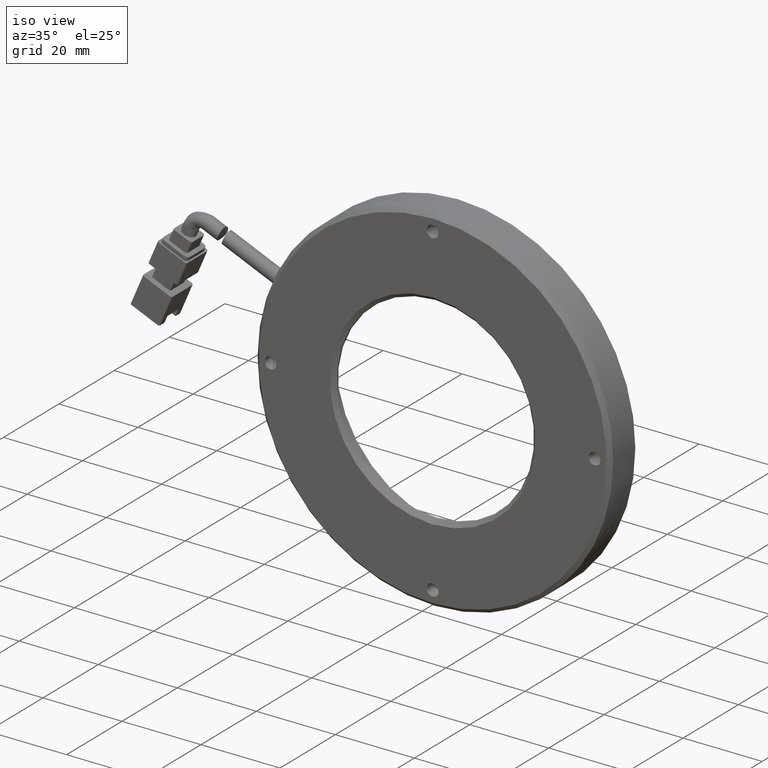
[diagram: clean part render]
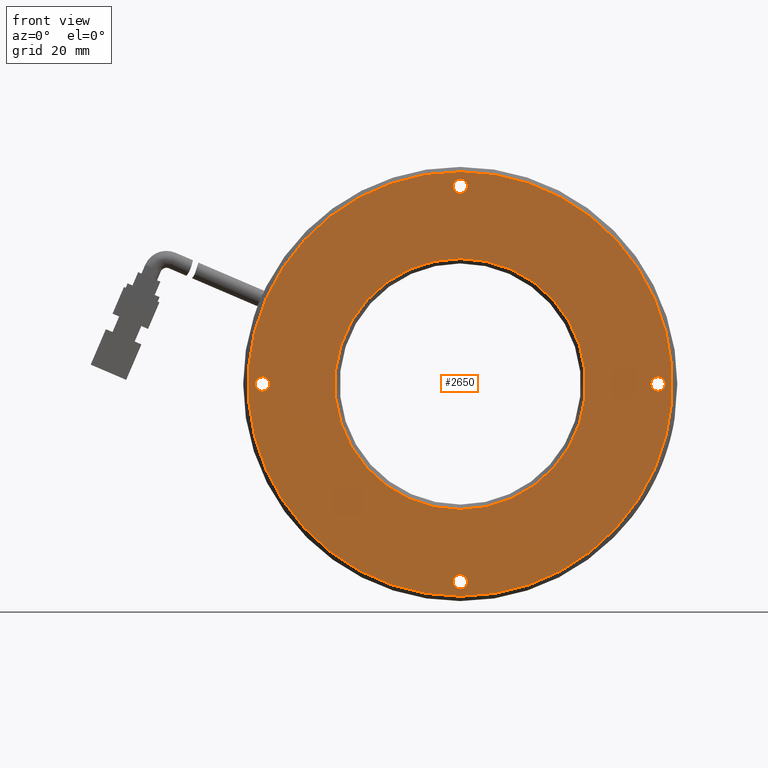
[diagram: tour spotlight — one face highlighted and labeled with its STEP entity id]
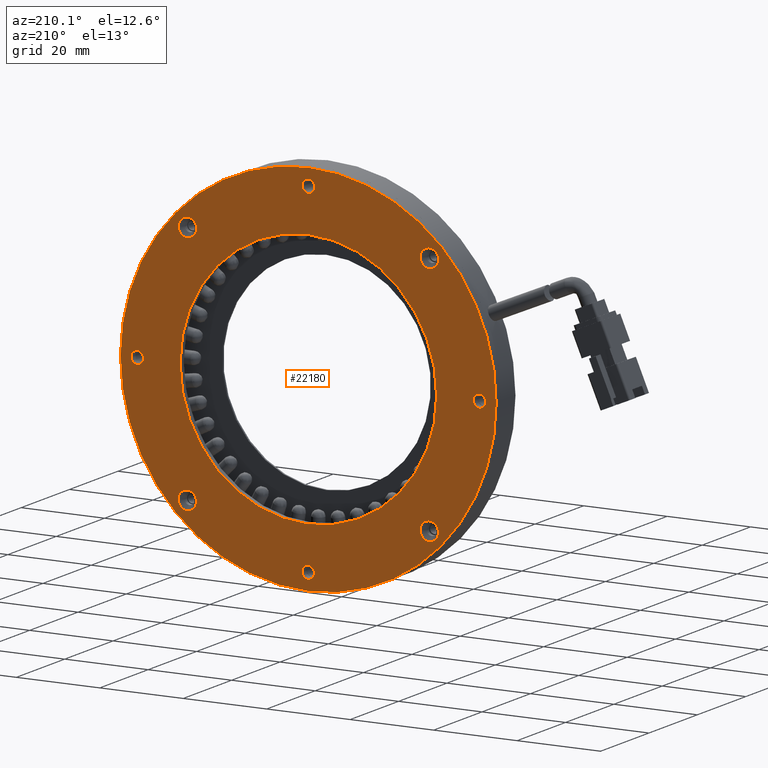
[diagram: tour spotlight — one face highlighted and labeled with its STEP entity id]
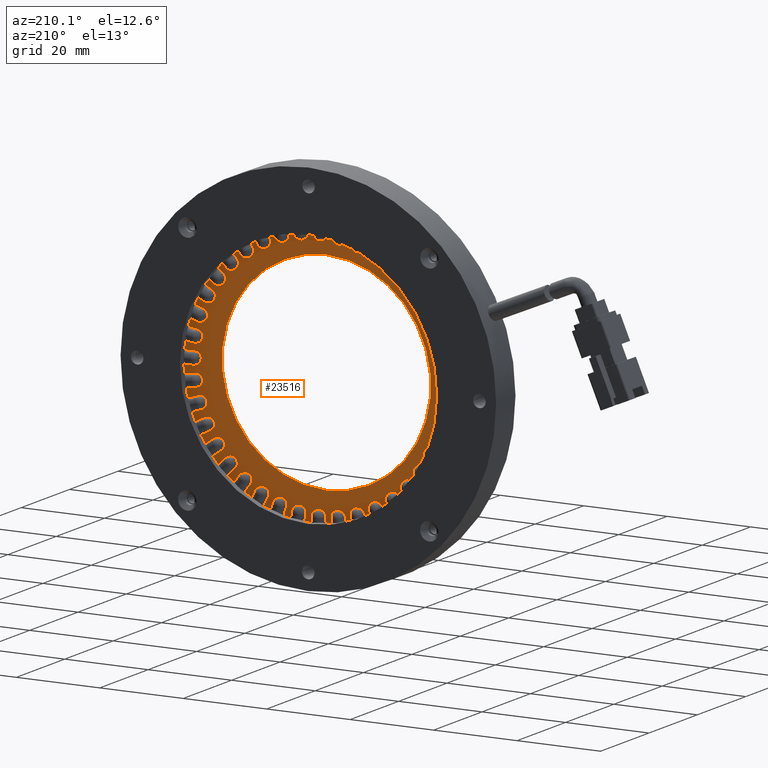
[diagram: tour spotlight — one face highlighted and labeled with its STEP entity id]
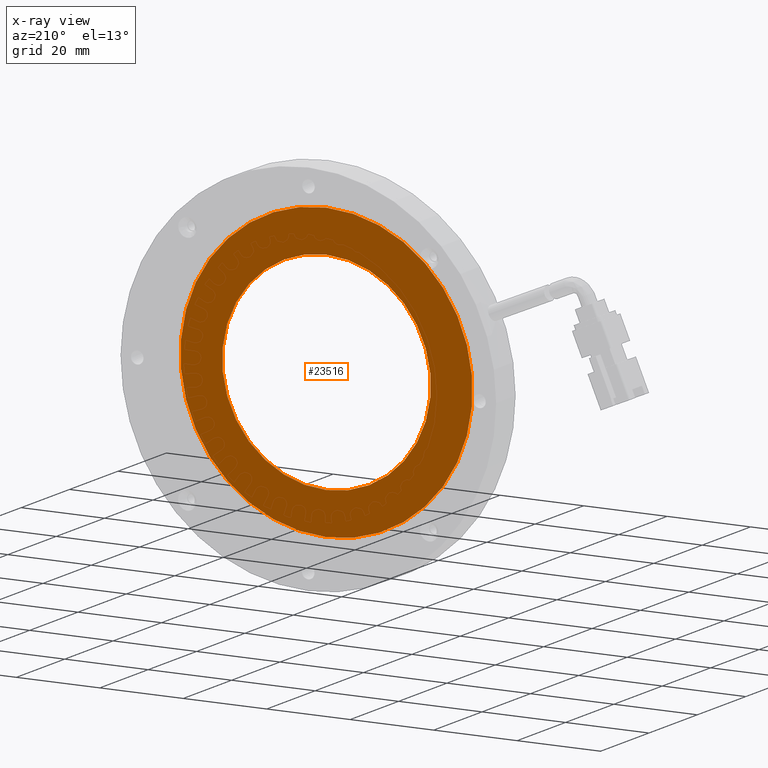
[diagram: x-ray of the same camera — body ghosted, this tour face saturated]
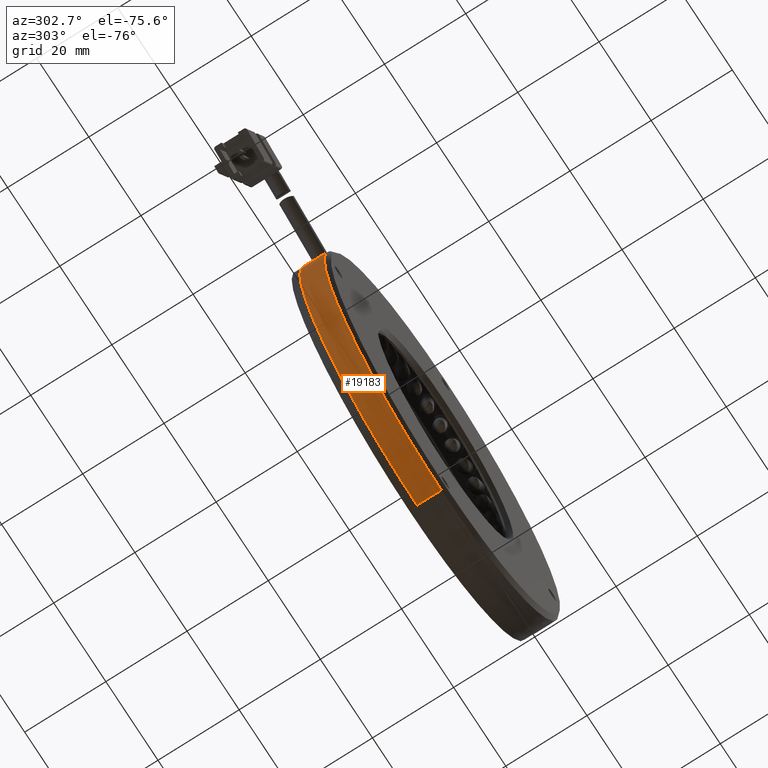
[diagram: tour spotlight — one face highlighted and labeled with its STEP entity id]
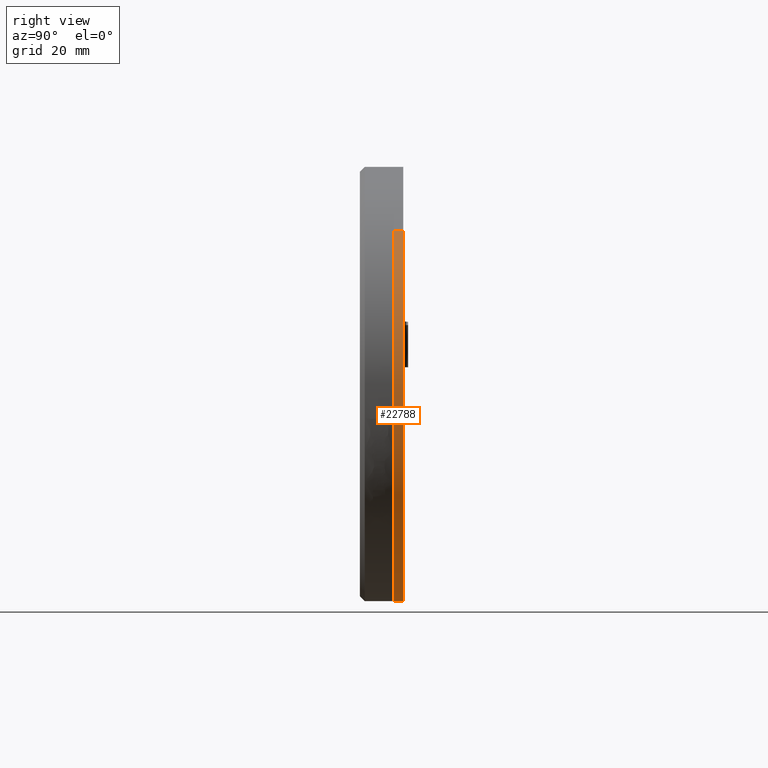
[diagram: tour spotlight — one face highlighted and labeled with its STEP entity id]
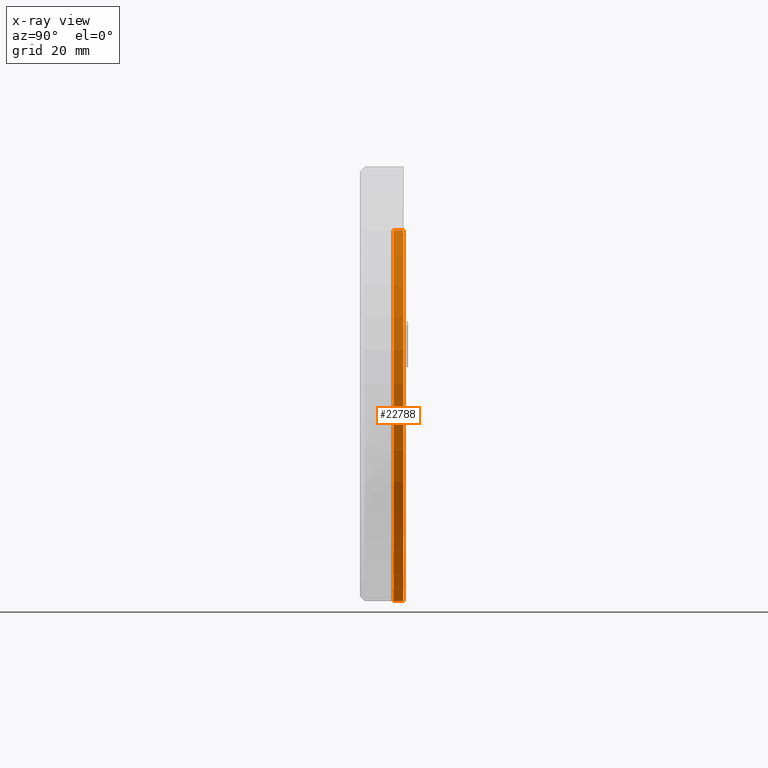
[diagram: x-ray of the same camera — body ghosted, this tour face saturated]
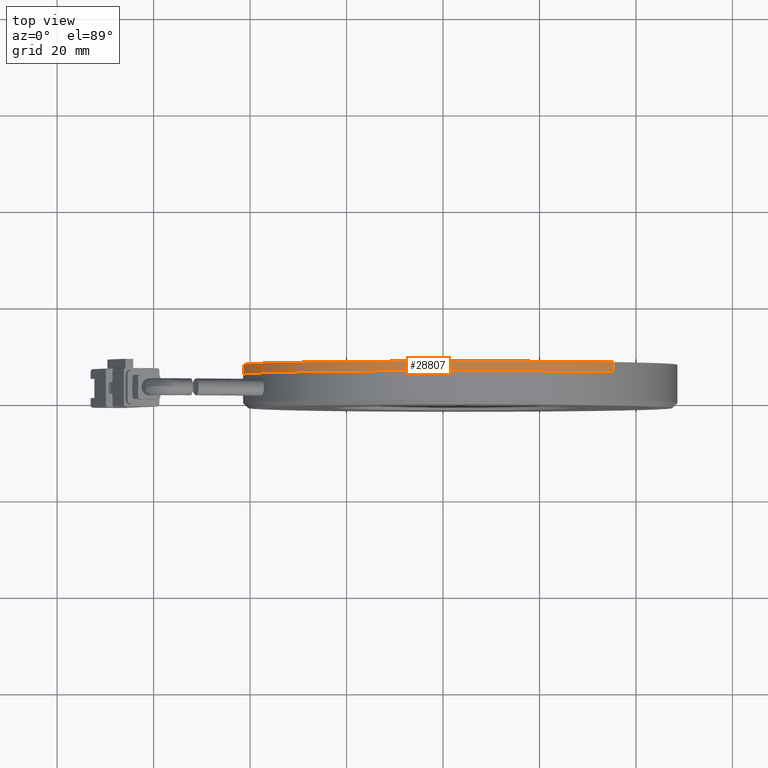
[diagram: tour spotlight — one face highlighted and labeled with its STEP entity id]
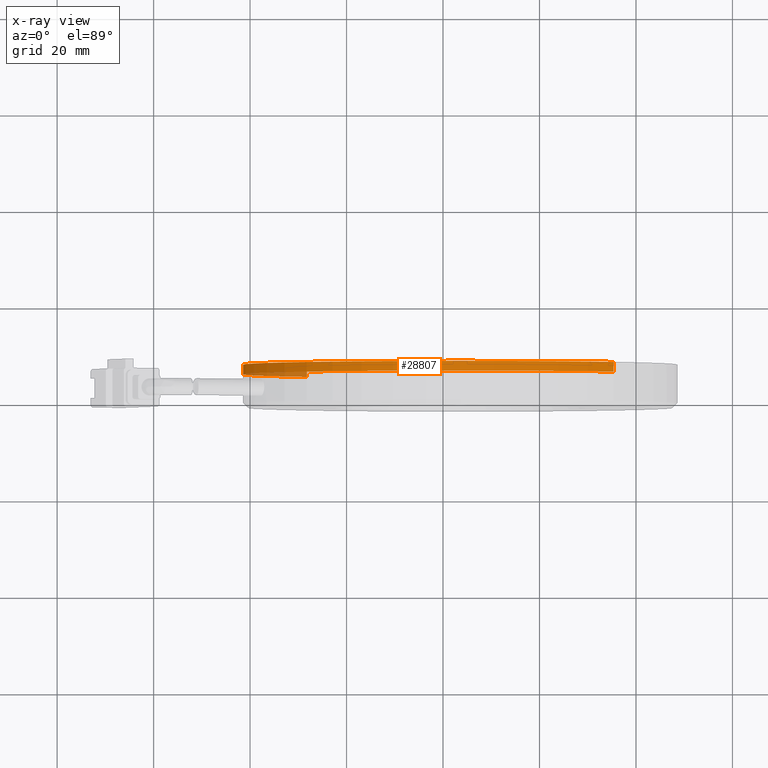
[diagram: x-ray of the same camera — body ghosted, this tour face saturated]
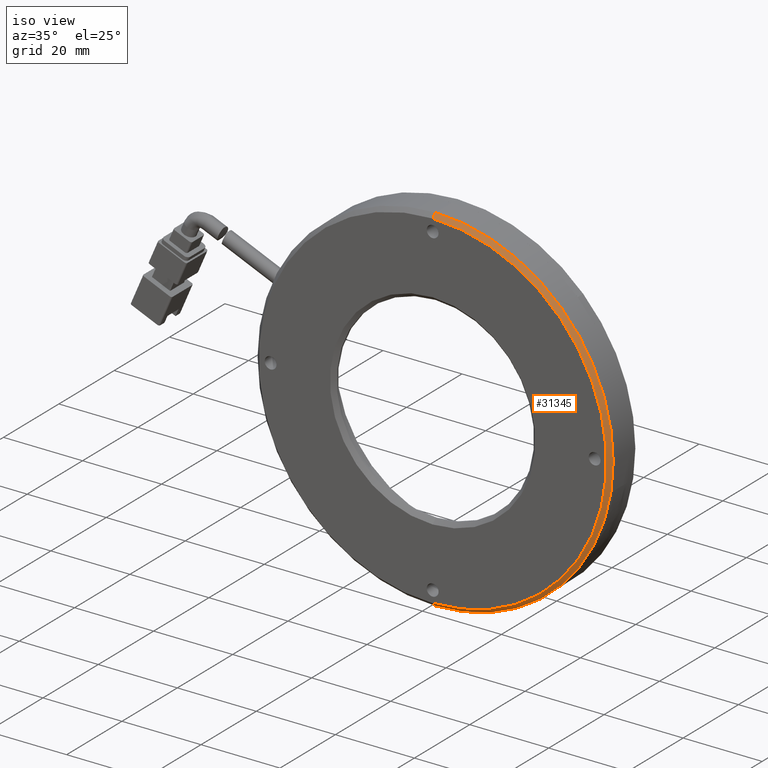
[diagram: tour spotlight — one face highlighted and labeled with its STEP entity id]
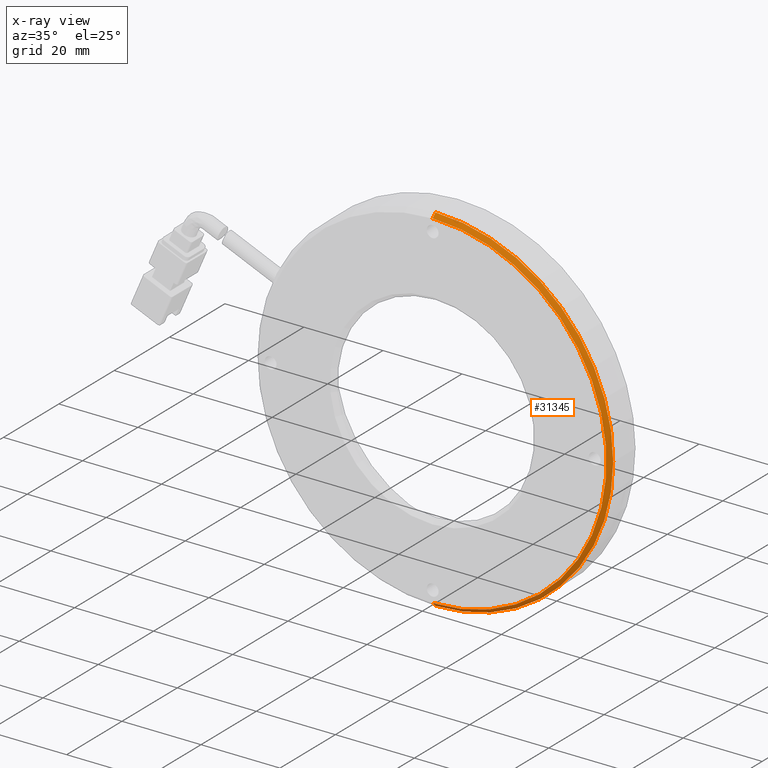
[diagram: x-ray of the same camera — body ghosted, this tour face saturated]
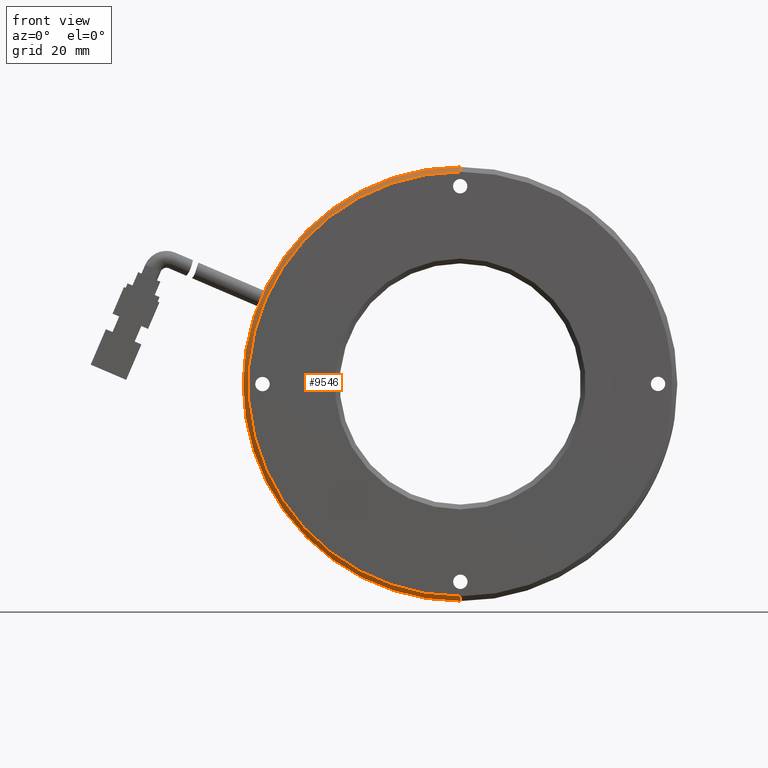
[diagram: tour spotlight — one face highlighted and labeled with its STEP entity id]
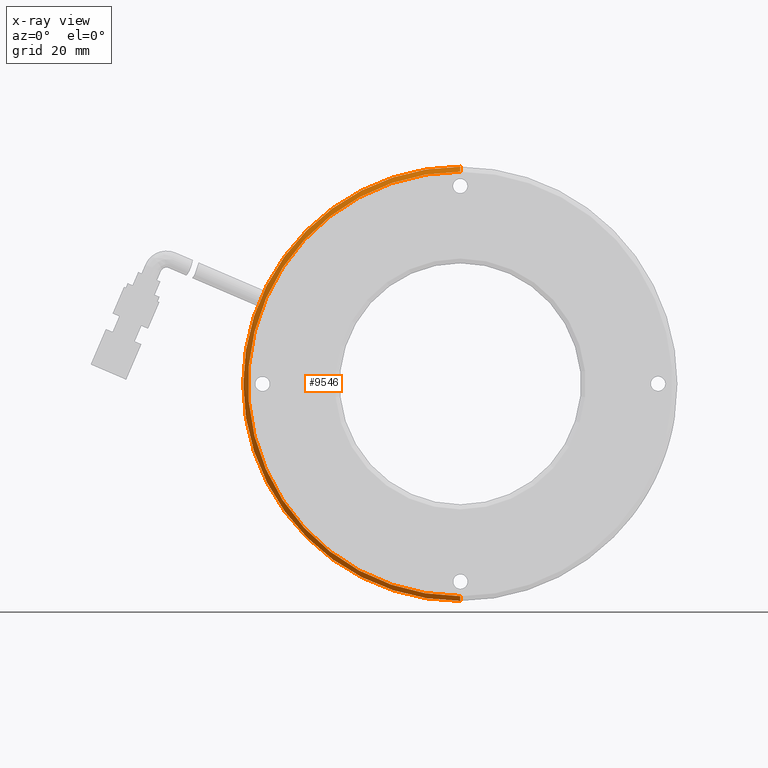
[diagram: x-ray of the same camera — body ghosted, this tour face saturated]
A machine part: a face-by-face anatomy tour. The part has 884 B-rep faces; the first image is the clean iso view, then the 8 largest visible faces are spotlighted one at a time (largest first), each with its STEP entity span.

Face 1 — front view, entity #2650. In plain terms, the highlighted planar face has unit normal (0, 1, 0).
Definition (entity closure, byte-faithful):
#359 = DIRECTION ( 'NONE',  ( 0.0000000000000000000, 0.0000000000000000000, 1.000000000000000000 ) ) ;
#1640 = DIRECTION ( 'NONE',  ( 0.0000000000000000000, -1.000000000000000000, 0.0000000000000000000 ) ) ;
#1647 = AXIS2_PLACEMENT_3D ( 'NONE', #21853, #3362, #25024 ) ;
#1667 = DIRECTION ( 'NONE',  ( 0.0000000000000000000, -0.0000000000000000000, 1.000000000000000000 ) ) ;
#1796 = DIRECTION ( 'NONE',  ( 0.0000000000000000000, 1.000000000000000000, 0.0000000000000000000 ) ) ;
#1813 = DIRECTION ( 'NONE',  ( 0.0000000000000000000, 0.0000000000000000000, 1.000000000000000000 ) ) ;
#1861 = DIRECTION ( 'NONE',  ( 0.0000000000000000000, -1.000000000000000000, 0.0000000000000000000 ) ) ;
#2053 = CARTESIAN_POINT ( 'NONE',  ( -41.42857142857143100, -1.376447876447878900, 0.0000000000000000000 ) ) ;
#2326 = CARTESIAN_POINT ( 'NONE',  ( -37.42857142857143800, -1.376447876447878900, 1.499999999999562400 ) ) ;
#2650 = ADVANCED_FACE ( 'NONE', ( #22138, #13937, #30411, #37631, #31369, #29454 ), #3671, .F. ) ;
#2782 = ORIENTED_EDGE ( 'NONE', *, *, #12845, .F. ) ;
#3362 = DIRECTION ( 'NONE',  ( 0.0000000000000000000, -1.000000000000000000, 0.0000000000000000000 ) ) ;
#3671 = PLANE ( 'NONE',  #39060 ) ;
#3791 = EDGE_CURVE ( 'NONE', #26821, #16218, #8871, .T. ) ;
#4214 = VERTEX_POINT ( 'NONE', #28337 ) ;
#4955 = EDGE_CURVE ( 'NONE', #14297, #20062, #40064, .T. ) ;
#5005 = AXIS2_PLACEMENT_3D ( 'NONE', #20099, #1640, #23262 ) ;
#5322 = AXIS2_PLACEMENT_3D ( 'NONE', #15004, #16272, #14926 ) ;
#6638 = VERTEX_POINT ( 'NONE', #37236 ) ;
#6715 = VERTEX_POINT ( 'NONE', #37501 ) ;
#7412 = DIRECTION ( 'NONE',  ( 0.0000000000000000000, -1.000000000000000000, 0.0000000000000000000 ) ) ;
#7822 = DIRECTION ( 'NONE',  ( 0.0000000000000000000, -1.000000000000000000, 0.0000000000000000000 ) ) ;
#7926 = ORIENTED_EDGE ( 'NONE', *, *, #29201, .F. ) ;
#8115 = CIRCLE ( 'NONE', #34352, 1.499999999999994400 ) ;
#8205 = AXIS2_PLACEMENT_3D ( 'NONE', #11899, #33529, #15035 ) ;
#8736 = EDGE_LOOP ( 'NONE', ( #2782, #30534 ) ) ;
#8853 = CARTESIAN_POINT ( 'NONE',  ( 3.571428571428565800, -1.376447876447878900, -42.49999999999999300 ) ) ;
#8871 = CIRCLE ( 'NONE', #5322, 1.499999999999994400 ) ;
#9190 = EDGE_LOOP ( 'NONE', ( #30074, #36045 ) ) ;
#9257 = AXIS2_PLACEMENT_3D ( 'NONE', #15275, #36865, #18327 ) ;
#9459 = ORIENTED_EDGE ( 'NONE', *, *, #35312, .F. ) ;
#9492 = AXIS2_PLACEMENT_3D ( 'NONE', #25946, #7412, #29062 ) ;
#9855 = ORIENTED_EDGE ( 'NONE', *, *, #34151, .F. ) ;
#9915 = CARTESIAN_POINT ( 'NONE',  ( 44.57142857142857700, -1.376447876447878900, -1.499999999999848600 ) ) ;
#10919 = ORIENTED_EDGE ( 'NONE', *, *, #39393, .F. ) ;
#11038 = DIRECTION ( 'NONE',  ( 0.0000000000000000000, -1.000000000000000000, 0.0000000000000000000 ) ) ;
#11062 = EDGE_CURVE ( 'NONE', #17683, #28860, #13383, .T. ) ;
#11385 = AXIS2_PLACEMENT_3D ( 'NONE', #33425, #14932, #36538 ) ;
#11899 = CARTESIAN_POINT ( 'NONE',  ( 3.571428571428565800, -1.376447876447878900, 0.0000000000000000000 ) ) ;
#12845 = EDGE_CURVE ( 'NONE', #25499, #6638, #13916, .T. ) ;
#12953 = EDGE_CURVE ( 'NONE', #16218, #26821, #8115, .T. ) ;
#12963 = VERTEX_POINT ( 'NONE', #14026 ) ;
#13383 = CIRCLE ( 'NONE', #16122, 1.499999999999994400 ) ;
#13916 = CIRCLE ( 'NONE', #9492, 1.499999999999992700 ) ;
#13937 = FACE_BOUND ( 'NONE', #14040, .T. ) ;
#14026 = CARTESIAN_POINT ( 'NONE',  ( 3.571428571428568500, -1.376447876447878900, 25.99999999999998200 ) ) ;
#14040 = EDGE_LOOP ( 'NONE', ( #20779, #9855 ) ) ;
#14297 = VERTEX_POINT ( 'NONE', #35054 ) ;
#14425 = CIRCLE ( 'NONE', #9257, 1.499999999999994400 ) ;
#14926 = DIRECTION ( 'NONE',  ( 0.0000000000000000000, 0.0000000000000000000, 1.000000000000000000 ) ) ;
#14932 = DIRECTION ( 'NONE',  ( 0.0000000000000000000, -1.000000000000000000, 0.0000000000000000000 ) ) ;
#15004 = CARTESIAN_POINT ( 'NONE',  ( 3.571428571428565800, -1.376447876447878900, -41.00000000000000000 ) ) ;
#15010 = EDGE_CURVE ( 'NONE', #28860, #17683, #31483, .T. ) ;
#15035 = DIRECTION ( 'NONE',  ( 0.0000000000000000000, 0.0000000000000000000, 1.000000000000000000 ) ) ;
#15199 = DIRECTION ( 'NONE',  ( 0.0000000000000000000, -1.000000000000000000, 0.0000000000000000000 ) ) ;
#15275 = CARTESIAN_POINT ( 'NONE',  ( 44.57142857142857700, -1.376447876447878900, 1.457167719820518000E-013 ) ) ;
#15441 = ORIENTED_EDGE ( 'NONE', *, *, #3791, .F. ) ;
#15736 = EDGE_LOOP ( 'NONE', ( #15441, #20354 ) ) ;
#16122 = AXIS2_PLACEMENT_3D ( 'NONE', #33703, #15199, #36800 ) ;
#16218 = VERTEX_POINT ( 'NONE', #8853 ) ;
#16272 = DIRECTION ( 'NONE',  ( 0.0000000000000000000, -1.000000000000000000, 0.0000000000000000000 ) ) ;
#17683 = VERTEX_POINT ( 'NONE', #30599 ) ;
#18327 = DIRECTION ( 'NONE',  ( 0.0000000000000000000, 0.0000000000000000000, 1.000000000000000000 ) ) ;
#18798 = DIRECTION ( 'NONE',  ( -0.0000000000000000000, 1.000000000000000000, 0.0000000000000000000 ) ) ;
#20062 = VERTEX_POINT ( 'NONE', #9915 ) ;
#20099 = CARTESIAN_POINT ( 'NONE',  ( 3.571428571428281200, -1.376447876447878900, 41.00000000000000000 ) ) ;
#20354 = ORIENTED_EDGE ( 'NONE', *, *, #12953, .F. ) ;
#20779 = ORIENTED_EDGE ( 'NONE', *, *, #4955, .F. ) ;
#20948 = CIRCLE ( 'NONE', #11385, 25.99999999999998200 ) ;
#21853 = CARTESIAN_POINT ( 'NONE',  ( 3.571428571428565800, -1.376447876447878900, 0.0000000000000000000 ) ) ;
#22138 = FACE_BOUND ( 'NONE', #15736, .T. ) ;
#23086 = VERTEX_POINT ( 'NONE', #36263 ) ;
#23262 = DIRECTION ( 'NONE',  ( 0.0000000000000000000, 0.0000000000000000000, 1.000000000000000000 ) ) ;
#23512 = EDGE_LOOP ( 'NONE', ( #9459, #10919 ) ) ;
#25024 = DIRECTION ( 'NONE',  ( 0.0000000000000000000, 0.0000000000000000000, -1.000000000000000000 ) ) ;
#25499 = VERTEX_POINT ( 'NONE', #2326 ) ;
#25946 = CARTESIAN_POINT ( 'NONE',  ( -37.42857142857143800, -1.376447876447878900, -4.302114220422481600E-013 ) ) ;
#26332 = CARTESIAN_POINT ( 'NONE',  ( -37.42857142857143800, -1.376447876447878900, -4.302114220422481600E-013 ) ) ;
#26699 = AXIS2_PLACEMENT_3D ( 'NONE', #26332, #7822, #29467 ) ;
#26821 = VERTEX_POINT ( 'NONE', #39539 ) ;
#27254 = CIRCLE ( 'NONE', #8205, 44.00000000000000000 ) ;
#28337 = CARTESIAN_POINT ( 'NONE',  ( 3.571428571428565800, -1.376447876447878900, 44.00000000000000000 ) ) ;
#28860 = VERTEX_POINT ( 'NONE', #34632 ) ;
#29062 = DIRECTION ( 'NONE',  ( 0.0000000000000000000, 0.0000000000000000000, 1.000000000000000000 ) ) ;
#29201 = EDGE_CURVE ( 'NONE', #23086, #4214, #27254, .T. ) ;
#29259 = CIRCLE ( 'NONE', #26699, 1.499999999999992700 ) ;
#29454 = FACE_BOUND ( 'NONE', #23512, .T. ) ;
#29467 = DIRECTION ( 'NONE',  ( 0.0000000000000000000, 0.0000000000000000000, 1.000000000000000000 ) ) ;
#29595 = CARTESIAN_POINT ( 'NONE',  ( 3.571428571428565800, -1.376447876447878900, -41.00000000000000000 ) ) ;
#29899 = CIRCLE ( 'NONE', #1647, 25.99999999999998200 ) ;
#29968 = ORIENTED_EDGE ( 'NONE', *, *, #33231, .F. ) ;
#30074 = ORIENTED_EDGE ( 'NONE', *, *, #11062, .F. ) ;
#30411 = FACE_BOUND ( 'NONE', #9190, .T. ) ;
#30534 = ORIENTED_EDGE ( 'NONE', *, *, #38072, .F. ) ;
#30599 = CARTESIAN_POINT ( 'NONE',  ( 3.571428571428281200, -1.376447876447878900, 42.49999999999999300 ) ) ;
#31034 = CIRCLE ( 'NONE', #35593, 44.00000000000000000 ) ;
#31369 = FACE_OUTER_BOUND ( 'NONE', #33621, .T. ) ;
#31483 = CIRCLE ( 'NONE', #5005, 1.499999999999994400 ) ;
#32666 = DIRECTION ( 'NONE',  ( 0.0000000000000000000, 0.0000000000000000000, 1.000000000000000000 ) ) ;
#33231 = EDGE_CURVE ( 'NONE', #4214, #23086, #31034, .T. ) ;
#33425 = CARTESIAN_POINT ( 'NONE',  ( 3.571428571428565800, -1.376447876447878900, 0.0000000000000000000 ) ) ;
#33529 = DIRECTION ( 'NONE',  ( -0.0000000000000000000, 1.000000000000000000, 0.0000000000000000000 ) ) ;
#33621 = EDGE_LOOP ( 'NONE', ( #29968, #7926 ) ) ;
#33703 = CARTESIAN_POINT ( 'NONE',  ( 3.571428571428281200, -1.376447876447878900, 41.00000000000000000 ) ) ;
#34151 = EDGE_CURVE ( 'NONE', #20062, #14297, #14425, .T. ) ;
#34352 = AXIS2_PLACEMENT_3D ( 'NONE', #29595, #11038, #32666 ) ;
#34356 = AXIS2_PLACEMENT_3D ( 'NONE', #36218, #1861, #1813 ) ;
#34632 = CARTESIAN_POINT ( 'NONE',  ( 3.571428571428281200, -1.376447876447878900, 39.50000000000000700 ) ) ;
#35054 = CARTESIAN_POINT ( 'NONE',  ( 44.57142857142857700, -1.376447876447878900, 1.500000000000140100 ) ) ;
#35312 = EDGE_CURVE ( 'NONE', #6715, #12963, #20948, .T. ) ;
#35593 = AXIS2_PLACEMENT_3D ( 'NONE', #37353, #18798, #359 ) ;
#36045 = ORIENTED_EDGE ( 'NONE', *, *, #15010, .F. ) ;
#36218 = CARTESIAN_POINT ( 'NONE',  ( 44.57142857142857700, -1.376447876447878900, 1.457167719820518000E-013 ) ) ;
#36263 = CARTESIAN_POINT ( 'NONE',  ( 3.571428571428570700, -1.376447876447878900, -44.00000000000000000 ) ) ;
#36538 = DIRECTION ( 'NONE',  ( 0.0000000000000000000, 0.0000000000000000000, -1.000000000000000000 ) ) ;
#36800 = DIRECTION ( 'NONE',  ( 0.0000000000000000000, 0.0000000000000000000, 1.000000000000000000 ) ) ;
#36865 = DIRECTION ( 'NONE',  ( 0.0000000000000000000, -1.000000000000000000, 0.0000000000000000000 ) ) ;
#37236 = CARTESIAN_POINT ( 'NONE',  ( -37.42857142857143800, -1.376447876447878900, -1.500000000000422800 ) ) ;
#37353 = CARTESIAN_POINT ( 'NONE',  ( 3.571428571428565800, -1.376447876447878900, 0.0000000000000000000 ) ) ;
#37501 = CARTESIAN_POINT ( 'NONE',  ( 3.571428571428565800, -1.376447876447878900, -25.99999999999998200 ) ) ;
#37631 = FACE_BOUND ( 'NONE', #8736, .T. ) ;
#38072 = EDGE_CURVE ( 'NONE', #6638, #25499, #29259, .T. ) ;
#39060 = AXIS2_PLACEMENT_3D ( 'NONE', #2053, #1796, #1667 ) ;
#39393 = EDGE_CURVE ( 'NONE', #12963, #6715, #29899, .T. ) ;
#39539 = CARTESIAN_POINT ( 'NONE',  ( 3.571428571428565800, -1.376447876447878900, -39.50000000000000700 ) ) ;
#40064 = CIRCLE ( 'NONE', #34356, 1.499999999999994400 ) ;

Face 2 — auxiliary view, entity #22180. In plain terms, the highlighted planar face has unit normal (0, -1, 0).
Definition (entity closure, byte-faithful):
#15 = EDGE_CURVE ( 'NONE', #1220, #427, #28646, .T. ) ;
#183 = CARTESIAN_POINT ( 'NONE',  ( 3.605229402510262900, 7.623552123552121500, -40.99998606711737600 ) ) ;
#184 = EDGE_LOOP ( 'NONE', ( #28330, #18010 ) ) ;
#214 = CIRCLE ( 'NONE', #31117, 2.199999999962528800 ) ;
#427 = VERTEX_POINT ( 'NONE', #36479 ) ;
#1220 = VERTEX_POINT ( 'NONE', #15356 ) ;
#1248 = VERTEX_POINT ( 'NONE', #16128 ) ;
#1663 = CARTESIAN_POINT ( 'NONE',  ( 34.14104945310195700, 7.623552123552124200, -27.41055050798560400 ) ) ;
#1868 = DIRECTION ( 'NONE',  ( 0.7065235946279214700, 0.0000000000000000000, 0.7076894871580616800 ) ) ;
#2034 = AXIS2_PLACEMENT_3D ( 'NONE', #8601, #30238, #11695 ) ;
#2581 = ORIENTED_EDGE ( 'NONE', *, *, #15, .F. ) ;
#3090 = EDGE_CURVE ( 'NONE', #13854, #35871, #21556, .T. ) ;
#3273 = EDGE_CURVE ( 'NONE', #14753, #23249, #23500, .T. ) ;
#3277 = DIRECTION ( 'NONE',  ( -0.7065235946279192500, 0.0000000000000000000, -0.7076894871580640100 ) ) ;
#3348 = CARTESIAN_POINT ( 'NONE',  ( 30.98454404302290400, 7.623552123552126000, 27.45835210176381500 ) ) ;
#3617 = EDGE_CURVE ( 'NONE', #36575, #12999, #23416, .T. ) ;
#3681 = EDGE_CURVE ( 'NONE', #34353, #3767, #7437, .T. ) ;
#3767 = VERTEX_POINT ( 'NONE', #18667 ) ;
#3974 = DIRECTION ( 'NONE',  ( -1.163897087407499700E-016, 1.000000000000000000, -2.939373556709199600E-017 ) ) ;
#4054 = EDGE_CURVE ( 'NONE', #30353, #32035, #22340, .T. ) ;
#4172 = EDGE_CURVE ( 'NONE', #29619, #21575, #21821, .T. ) ;
#4182 = FACE_BOUND ( 'NONE', #25026, .T. ) ;
#4211 = CIRCLE ( 'NONE', #10141, 1.499999999999994400 ) ;
#4244 = CARTESIAN_POINT ( 'NONE',  ( -25.44384040205195800, 7.623552123608962300, 28.96746737974478900 ) ) ;
#4643 = CIRCLE ( 'NONE', #2034, 30.74000000000000200 ) ;
#4867 = CARTESIAN_POINT ( 'NONE',  ( -25.44384040205195800, 7.623552123608962300, 28.96746737974478900 ) ) ;
#5064 = CARTESIAN_POINT ( 'NONE',  ( -37.42855749568880700, 7.623552123552118000, -0.03380083108155823600 ) ) ;
#5155 = FACE_BOUND ( 'NONE', #34957, .T. ) ;
#5187 = EDGE_LOOP ( 'NONE', ( #37230, #39962 ) ) ;
#5348 = VERTEX_POINT ( 'NONE', #21888 ) ;
#5539 = VERTEX_POINT ( 'NONE', #9891 ) ;
#5643 = DIRECTION ( 'NONE',  ( -1.163897087407499700E-016, 1.000000000000000000, -2.939373556709199600E-017 ) ) ;
#6290 = DIRECTION ( 'NONE',  ( -1.163897087407499700E-016, 1.000000000000000000, -2.939373556709199600E-017 ) ) ;
#6404 = CIRCLE ( 'NONE', #24686, 2.199999999959346900 ) ;
#6546 = CARTESIAN_POINT ( 'NONE',  ( 3.571428571428565800, 7.623552123552121500, 0.0000000000000000000 ) ) ;
#7169 = EDGE_CURVE ( 'NONE', #30765, #5539, #23677, .T. ) ;
#7326 = EDGE_CURVE ( 'NONE', #12999, #36575, #6404, .T. ) ;
#7437 = CIRCLE ( 'NONE', #18454, 2.199999999956160100 ) ;
#7973 = DIRECTION ( 'NONE',  ( 0.7065235946279214700, 0.0000000000000000000, 0.7076894871580619000 ) ) ;
#7990 = CARTESIAN_POINT ( 'NONE',  ( -28.27459835068420100, 7.623552123552118900, 31.79356175825647700 ) ) ;
#8163 = DIRECTION ( 'NONE',  ( -0.7065235946279214700, 0.0000000000000000000, -0.7076894871580617900 ) ) ;
#8380 = AXIS2_PLACEMENT_3D ( 'NONE', #14011, #11283, #10446 ) ;
#8601 = CARTESIAN_POINT ( 'NONE',  ( 3.571428571428565800, 7.623552123552121500, 0.0000000000000000000 ) ) ;
#9547 = AXIS2_PLACEMENT_3D ( 'NONE', #17061, #38686, #20125 ) ;
#9629 = DIRECTION ( 'NONE',  ( 0.7065235946279216900, 1.128642469731169200E-016, 0.7076894871580616800 ) ) ;
#9891 = CARTESIAN_POINT ( 'NONE',  ( 4.597413132288457900, 7.623552123552124200, 42.06152029785445700 ) ) ;
#10027 = EDGE_LOOP ( 'NONE', ( #29588, #32840 ) ) ;
#10067 = CIRCLE ( 'NONE', #9547, 45.00000000000000000 ) ;
#10141 = AXIS2_PLACEMENT_3D ( 'NONE', #24790, #6290, #27897 ) ;
#10446 = DIRECTION ( 'NONE',  ( -0.7065235946279214700, 0.0000000000000000000, -0.7076894871580617900 ) ) ;
#10491 = CIRCLE ( 'NONE', #23009, 2.200000000016186800 ) ;
#11283 = DIRECTION ( 'NONE',  ( -1.163897087407499700E-016, 1.000000000000000000, -2.939373556709199600E-017 ) ) ;
#11395 = CARTESIAN_POINT ( 'NONE',  ( 4.665014794452143400, 7.623552123552121500, -39.93845183638028800 ) ) ;
#11695 = DIRECTION ( 'NONE',  ( 0.7065235946279216900, 1.128642469731169200E-016, 0.7076894871580616800 ) ) ;
#11965 = DIRECTION ( 'NONE',  ( -1.163897087407499700E-016, 1.000000000000000000, -2.939373556709199600E-017 ) ) ;
#12040 = AXIS2_PLACEMENT_3D ( 'NONE', #7990, #32701, #14202 ) ;
#12053 = CARTESIAN_POINT ( 'NONE',  ( -18.14710672743374400, 7.623552123552118000, -21.75437483523882100 ) ) ;
#12387 = FACE_BOUND ( 'NONE', #23536, .T. ) ;
#12786 = CARTESIAN_POINT ( 'NONE',  ( -23.84168690016127100, 7.623552123495273700, -27.45835210175930300 ) ) ;
#12970 = CARTESIAN_POINT ( 'NONE',  ( 2.477842348404698300, 7.623552123552124200, 39.93845183638028100 ) ) ;
#12999 = VERTEX_POINT ( 'NONE', #32804 ) ;
#13001 = AXIS2_PLACEMENT_3D ( 'NONE', #15450, #37056, #18490 ) ;
#13739 = AXIS2_PLACEMENT_3D ( 'NONE', #25593, #25187, #25273 ) ;
#13854 = VERTEX_POINT ( 'NONE', #38461 ) ;
#14011 = CARTESIAN_POINT ( 'NONE',  ( -37.42855749568880700, 7.623552123552118000, -0.03380083108155823600 ) ) ;
#14075 = EDGE_CURVE ( 'NONE', #5348, #26304, #214, .T. ) ;
#14202 = DIRECTION ( 'NONE',  ( -0.7065235946279216900, -1.030337130463465200E-016, -0.7076894871580615700 ) ) ;
#14753 = VERTEX_POINT ( 'NONE', #31393 ) ;
#14875 = CIRCLE ( 'NONE', #22693, 1.499999999999990500 ) ;
#14888 = DIRECTION ( 'NONE',  ( -1.163897087407499700E-016, 1.000000000000000000, -2.939373556709199600E-017 ) ) ;
#15003 = DIRECTION ( 'NONE',  ( -0.7065235946279235800, 0.0000000000000000000, -0.7076894871580596800 ) ) ;
#15186 = EDGE_CURVE ( 'NONE', #26304, #5348, #25183, .T. ) ;
#15285 = CIRCLE ( 'NONE', #33558, 1.499999999999994900 ) ;
#15356 = CARTESIAN_POINT ( 'NONE',  ( 35.36499032968504300, 7.623552123552126000, 31.84602692211276700 ) ) ;
#15450 = CARTESIAN_POINT ( 'NONE',  ( 3.537627740346577500, 7.623552123552124200, 40.99998606711736900 ) ) ;
#15526 = DIRECTION ( 'NONE',  ( -1.163897087407499700E-016, 1.000000000000000000, -2.939373556709199600E-017 ) ) ;
#15914 = CARTESIAN_POINT ( 'NONE',  ( 44.57141463854593900, 7.623552123552127700, 0.03380083108184966900 ) ) ;
#16027 = CARTESIAN_POINT ( 'NONE',  ( -23.88948849389925000, 7.623552123608962300, 30.52438425146375400 ) ) ;
#16128 = CARTESIAN_POINT ( 'NONE',  ( 25.28996387029088000, 7.623552123552125100, 21.75437483523881700 ) ) ;
#16638 = AXIS2_PLACEMENT_3D ( 'NONE', #33389, #14888, #36508 ) ;
#17061 = CARTESIAN_POINT ( 'NONE',  ( 3.571428571428565800, 7.623552123552121500, 0.0000000000000000000 ) ) ;
#17414 = DIRECTION ( 'NONE',  ( -1.163897087407499700E-016, 1.000000000000000000, -2.939373556709199600E-017 ) ) ;
#17896 = AXIS2_PLACEMENT_3D ( 'NONE', #183, #21770, #3277 ) ;
#18010 = ORIENTED_EDGE ( 'NONE', *, *, #3681, .F. ) ;
#18454 = AXIS2_PLACEMENT_3D ( 'NONE', #30701, #30201, #30374 ) ;
#18490 = DIRECTION ( 'NONE',  ( -0.7065235946279202500, 0.0000000000000000000, -0.7076894871580629000 ) ) ;
#18667 = CARTESIAN_POINT ( 'NONE',  ( 34.09324785932381000, 7.623552123552126000, 30.57218584519723600 ) ) ;
#18780 = DIRECTION ( 'NONE',  ( 0.7065235946279214700, 0.0000000000000000000, 0.7076894871580619000 ) ) ;
#18782 = EDGE_CURVE ( 'NONE', #35871, #13854, #15285, .T. ) ;
#19108 = EDGE_LOOP ( 'NONE', ( #24887, #26887 ) ) ;
#19594 = EDGE_LOOP ( 'NONE', ( #2581, #34033 ) ) ;
#19595 = FACE_BOUND ( 'NONE', #10027, .T. ) ;
#20077 = CARTESIAN_POINT ( 'NONE',  ( 2.545444010568383800, 7.623552123552121500, -42.06152029785446400 ) ) ;
#20125 = DIRECTION ( 'NONE',  ( 0.7065235946279216900, 9.637352644315595200E-017, 0.7076894871580614600 ) ) ;
#20323 = EDGE_CURVE ( 'NONE', #32035, #30353, #10491, .T. ) ;
#20334 = DIRECTION ( 'NONE',  ( -1.163897087407499700E-016, 1.000000000000000000, -2.939373556709199600E-017 ) ) ;
#20578 = FACE_BOUND ( 'NONE', #34442, .T. ) ;
#20832 = CIRCLE ( 'NONE', #17896, 1.499999999999994400 ) ;
#21556 = CIRCLE ( 'NONE', #28584, 1.499999999999995600 ) ;
#21559 = FACE_OUTER_BOUND ( 'NONE', #19594, .T. ) ;
#21575 = VERTEX_POINT ( 'NONE', #11395 ) ;
#21770 = DIRECTION ( 'NONE',  ( -1.163897087407499700E-016, 1.000000000000000000, -2.939373556709199600E-017 ) ) ;
#21821 = CIRCLE ( 'NONE', #30739, 1.499999999999996700 ) ;
#21888 = CARTESIAN_POINT ( 'NONE',  ( -26.95039071647118300, 7.623552123495273700, -30.57218584520174100 ) ) ;
#21961 = ORIENTED_EDGE ( 'NONE', *, *, #38830, .F. ) ;
#22164 = CARTESIAN_POINT ( 'NONE',  ( -36.36877210374692700, 7.623552123552118000, 1.027733399655528000 ) ) ;
#22180 = ADVANCED_FACE ( 'NONE', ( #21559, #37046, #38020, #5155, #20578, #12387, #4182, #36088, #27872, #19595 ), #23397, .F. ) ;
#22330 = ORIENTED_EDGE ( 'NONE', *, *, #4054, .F. ) ;
#22340 = CIRCLE ( 'NONE', #35610, 2.200000000016186800 ) ;
#22693 = AXIS2_PLACEMENT_3D ( 'NONE', #5064, #26685, #8163 ) ;
#22987 = EDGE_CURVE ( 'NONE', #23249, #14753, #14875, .T. ) ;
#23009 = AXIS2_PLACEMENT_3D ( 'NONE', #38905, #20334, #1868 ) ;
#23133 = VERTEX_POINT ( 'NONE', #12053 ) ;
#23249 = VERTEX_POINT ( 'NONE', #22164 ) ;
#23397 = PLANE ( 'NONE',  #12040 ) ;
#23416 = CIRCLE ( 'NONE', #33776, 2.199999999959346900 ) ;
#23500 = CIRCLE ( 'NONE', #8380, 1.499999999999990500 ) ;
#23536 = EDGE_LOOP ( 'NONE', ( #37244, #23755 ) ) ;
#23677 = CIRCLE ( 'NONE', #13001, 1.499999999999996700 ) ;
#23755 = ORIENTED_EDGE ( 'NONE', *, *, #7326, .F. ) ;
#24122 = CIRCLE ( 'NONE', #37183, 2.199999999956160100 ) ;
#24141 = CARTESIAN_POINT ( 'NONE',  ( -25.39603880831622700, 7.623552123495273700, -29.01526897348052400 ) ) ;
#24243 = CIRCLE ( 'NONE', #34479, 30.74000000000000200 ) ;
#24431 = EDGE_LOOP ( 'NONE', ( #39871, #21961 ) ) ;
#24686 = AXIS2_PLACEMENT_3D ( 'NONE', #4867, #26483, #7973 ) ;
#24790 = CARTESIAN_POINT ( 'NONE',  ( 3.537627740346577500, 7.623552123552124200, 40.99998606711736900 ) ) ;
#24887 = ORIENTED_EDGE ( 'NONE', *, *, #4172, .F. ) ;
#25026 = EDGE_LOOP ( 'NONE', ( #29319, #32189 ) ) ;
#25183 = CIRCLE ( 'NONE', #16638, 2.199999999962528800 ) ;
#25187 = DIRECTION ( 'NONE',  ( 1.163897087407499700E-016, -1.000000000000000000, 2.939373556709199600E-017 ) ) ;
#25273 = DIRECTION ( 'NONE',  ( 0.7065235946279216900, 9.637352644315595200E-017, 0.7076894871580614600 ) ) ;
#25298 = ORIENTED_EDGE ( 'NONE', *, *, #20323, .F. ) ;
#25593 = CARTESIAN_POINT ( 'NONE',  ( 3.571428571428565800, 7.623552123552121500, 0.0000000000000000000 ) ) ;
#26304 = VERTEX_POINT ( 'NONE', #12786 ) ;
#26483 = DIRECTION ( 'NONE',  ( -1.163897087407499700E-016, 1.000000000000000000, -2.939373556709199600E-017 ) ) ;
#26644 = CARTESIAN_POINT ( 'NONE',  ( 43.51162924660406600, 7.623552123552127700, -1.027733399655238700 ) ) ;
#26685 = DIRECTION ( 'NONE',  ( -1.163897087407499700E-016, 1.000000000000000000, -2.939373556709199600E-017 ) ) ;
#26887 = ORIENTED_EDGE ( 'NONE', *, *, #38810, .F. ) ;
#27249 = DIRECTION ( 'NONE',  ( 0.7065235946279214700, 0.0000000000000000000, 0.7076894871580617900 ) ) ;
#27613 = DIRECTION ( 'NONE',  ( -0.7065235946279202500, 0.0000000000000000000, -0.7076894871580629000 ) ) ;
#27693 = DIRECTION ( 'NONE',  ( -1.163897087407499700E-016, 1.000000000000000000, -2.939373556709199600E-017 ) ) ;
#27822 = CARTESIAN_POINT ( 'NONE',  ( 3.605229402510262900, 7.623552123552121500, -40.99998606711737600 ) ) ;
#27872 = FACE_BOUND ( 'NONE', #19108, .T. ) ;
#27897 = DIRECTION ( 'NONE',  ( -0.7065235946279192500, 0.0000000000000000000, -0.7076894871580640100 ) ) ;
#28147 = ORIENTED_EDGE ( 'NONE', *, *, #15186, .F. ) ;
#28165 = DIRECTION ( 'NONE',  ( -1.163897087407499700E-016, 1.000000000000000000, -2.939373556709199600E-017 ) ) ;
#28330 = ORIENTED_EDGE ( 'NONE', *, *, #34010, .F. ) ;
#28584 = AXIS2_PLACEMENT_3D ( 'NONE', #15914, #15526, #15003 ) ;
#28646 = CIRCLE ( 'NONE', #13739, 45.00000000000000000 ) ;
#29319 = ORIENTED_EDGE ( 'NONE', *, *, #7169, .F. ) ;
#29588 = ORIENTED_EDGE ( 'NONE', *, *, #3273, .F. ) ;
#29619 = VERTEX_POINT ( 'NONE', #20077 ) ;
#30189 = CARTESIAN_POINT ( 'NONE',  ( 31.03234563671623300, 7.623552123552124200, -30.52438425150398500 ) ) ;
#30201 = DIRECTION ( 'NONE',  ( -1.163897087407499700E-016, 1.000000000000000000, -2.939373556709199600E-017 ) ) ;
#30238 = DIRECTION ( 'NONE',  ( -1.163897087407499700E-016, 1.000000000000000000, -2.939373556709199600E-017 ) ) ;
#30328 = EDGE_CURVE ( 'NONE', #427, #1220, #10067, .T. ) ;
#30353 = VERTEX_POINT ( 'NONE', #1663 ) ;
#30374 = DIRECTION ( 'NONE',  ( 0.7065235946279213600, 0.0000000000000000000, 0.7076894871580619000 ) ) ;
#30518 = CARTESIAN_POINT ( 'NONE',  ( 44.57141463854593900, 7.623552123552127700, 0.03380083108184966900 ) ) ;
#30701 = CARTESIAN_POINT ( 'NONE',  ( 32.53889595117335900, 7.623552123552126000, 29.01526897348052700 ) ) ;
#30739 = AXIS2_PLACEMENT_3D ( 'NONE', #27822, #27693, #27613 ) ;
#30765 = VERTEX_POINT ( 'NONE', #12970 ) ;
#31117 = AXIS2_PLACEMENT_3D ( 'NONE', #24141, #5643, #27249 ) ;
#31393 = CARTESIAN_POINT ( 'NONE',  ( -38.48834288763067900, 7.623552123552118000, -1.095335061818644200 ) ) ;
#31814 = EDGE_CURVE ( 'NONE', #5539, #30765, #4211, .T. ) ;
#32035 = VERTEX_POINT ( 'NONE', #30189 ) ;
#32189 = ORIENTED_EDGE ( 'NONE', *, *, #31814, .F. ) ;
#32466 = ORIENTED_EDGE ( 'NONE', *, *, #14075, .F. ) ;
#32613 = DIRECTION ( 'NONE',  ( 0.7065235946279214700, 0.0000000000000000000, 0.7076894871580616800 ) ) ;
#32647 = DIRECTION ( 'NONE',  ( -1.163897087407499700E-016, 1.000000000000000000, -2.939373556709199600E-017 ) ) ;
#32695 = CARTESIAN_POINT ( 'NONE',  ( 32.58669754490909300, 7.623552123552124200, -28.96746737974479700 ) ) ;
#32701 = DIRECTION ( 'NONE',  ( 1.163897087407499700E-016, -1.000000000000000000, 2.939373556709199600E-017 ) ) ;
#32804 = CARTESIAN_POINT ( 'NONE',  ( -26.99819231020466100, 7.623552123608962300, 27.41055050802582100 ) ) ;
#32840 = ORIENTED_EDGE ( 'NONE', *, *, #22987, .F. ) ;
#33389 = CARTESIAN_POINT ( 'NONE',  ( -25.39603880831622700, 7.623552123495273700, -29.01526897348052400 ) ) ;
#33558 = AXIS2_PLACEMENT_3D ( 'NONE', #30518, #11965, #33603 ) ;
#33603 = DIRECTION ( 'NONE',  ( -0.7065235946279239100, 0.0000000000000000000, -0.7076894871580593500 ) ) ;
#33776 = AXIS2_PLACEMENT_3D ( 'NONE', #4244, #3974, #18780 ) ;
#34010 = EDGE_CURVE ( 'NONE', #3767, #34353, #24122, .T. ) ;
#34033 = ORIENTED_EDGE ( 'NONE', *, *, #30328, .F. ) ;
#34353 = VERTEX_POINT ( 'NONE', #3348 ) ;
#34442 = EDGE_LOOP ( 'NONE', ( #28147, #32466 ) ) ;
#34479 = AXIS2_PLACEMENT_3D ( 'NONE', #6546, #28165, #9629 ) ;
#34678 = EDGE_CURVE ( 'NONE', #1248, #23133, #4643, .T. ) ;
#34957 = EDGE_LOOP ( 'NONE', ( #22330, #25298 ) ) ;
#35610 = AXIS2_PLACEMENT_3D ( 'NONE', #32695, #32647, #32613 ) ;
#35871 = VERTEX_POINT ( 'NONE', #26644 ) ;
#35937 = CARTESIAN_POINT ( 'NONE',  ( 32.53889595117335900, 7.623552123552126000, 29.01526897348052700 ) ) ;
#36088 = FACE_BOUND ( 'NONE', #5187, .T. ) ;
#36479 = CARTESIAN_POINT ( 'NONE',  ( -28.22213318682790400, 7.623552123552117100, -31.84602692211277400 ) ) ;
#36508 = DIRECTION ( 'NONE',  ( 0.7065235946279214700, 0.0000000000000000000, 0.7076894871580617900 ) ) ;
#36575 = VERTEX_POINT ( 'NONE', #16027 ) ;
#37046 = FACE_BOUND ( 'NONE', #24431, .T. ) ;
#37056 = DIRECTION ( 'NONE',  ( -1.163897087407499700E-016, 1.000000000000000000, -2.939373556709199600E-017 ) ) ;
#37183 = AXIS2_PLACEMENT_3D ( 'NONE', #35937, #17414, #39070 ) ;
#37230 = ORIENTED_EDGE ( 'NONE', *, *, #18782, .F. ) ;
#37244 = ORIENTED_EDGE ( 'NONE', *, *, #3617, .F. ) ;
#38020 = FACE_BOUND ( 'NONE', #184, .T. ) ;
#38461 = CARTESIAN_POINT ( 'NONE',  ( 45.63120003048781800, 7.623552123552127700, 1.095335061818939500 ) ) ;
#38686 = DIRECTION ( 'NONE',  ( 1.163897087407499700E-016, -1.000000000000000000, 2.939373556709199600E-017 ) ) ;
#38810 = EDGE_CURVE ( 'NONE', #21575, #29619, #20832, .T. ) ;
#38830 = EDGE_CURVE ( 'NONE', #23133, #1248, #24243, .T. ) ;
#38905 = CARTESIAN_POINT ( 'NONE',  ( 32.58669754490909300, 7.623552123552124200, -28.96746737974479700 ) ) ;
#39070 = DIRECTION ( 'NONE',  ( 0.7065235946279213600, 0.0000000000000000000, 0.7076894871580619000 ) ) ;
#39871 = ORIENTED_EDGE ( 'NONE', *, *, #34678, .F. ) ;
#39962 = ORIENTED_EDGE ( 'NONE', *, *, #3090, .F. ) ;

Face 3 — auxiliary view, entity #23516. An x-ray twin of the same camera follows (body ghosted, this face saturated) — the face is partly hidden behind the body. In plain terms, the highlighted planar face has unit normal (0, -1, 0).
Definition (entity closure, byte-faithful):
#794 = EDGE_CURVE ( 'NONE', #19716, #10071, #35730, .T. ) ;
#1537 = AXIS2_PLACEMENT_3D ( 'NONE', #2644, #24295, #5805 ) ;
#1734 = EDGE_LOOP ( 'NONE', ( #23335, #26762 ) ) ;
#1879 = CARTESIAN_POINT ( 'NONE',  ( 3.571428571428565800, 0.1235521235521210800, -35.00000000000000000 ) ) ;
#1990 = DIRECTION ( 'NONE',  ( -0.0000000000000000000, -1.000000000000000000, -0.0000000000000000000 ) ) ;
#2644 = CARTESIAN_POINT ( 'NONE',  ( 3.571428571428565800, 0.1235521235521210800, 0.0000000000000000000 ) ) ;
#4689 = CIRCLE ( 'NONE', #1537, 35.00000000000000000 ) ;
#5805 = DIRECTION ( 'NONE',  ( 0.0000000000000000000, 0.0000000000000000000, -1.000000000000000000 ) ) ;
#7856 = CARTESIAN_POINT ( 'NONE',  ( -31.42857142857143800, 0.1235521235521210800, 0.0000000000000000000 ) ) ;
#8005 = FACE_OUTER_BOUND ( 'NONE', #1734, .T. ) ;
#8673 = CARTESIAN_POINT ( 'NONE',  ( 3.571428571428565800, 0.1235521235521210800, 0.0000000000000000000 ) ) ;
#9371 = VERTEX_POINT ( 'NONE', #24105 ) ;
#10071 = VERTEX_POINT ( 'NONE', #15808 ) ;
#10340 = VERTEX_POINT ( 'NONE', #1879 ) ;
#10939 = DIRECTION ( 'NONE',  ( 0.0000000000000000000, -0.0000000000000000000, -1.000000000000000000 ) ) ;
#11767 = DIRECTION ( 'NONE',  ( 0.0000000000000000000, 0.0000000000000000000, -1.000000000000000000 ) ) ;
#11963 = CIRCLE ( 'NONE', #23298, 25.00000000000000000 ) ;
#12187 = CARTESIAN_POINT ( 'NONE',  ( 3.571428571428565800, 0.1235521235521210800, 0.0000000000000000000 ) ) ;
#13820 = EDGE_LOOP ( 'NONE', ( #16583, #32103 ) ) ;
#14937 = DIRECTION ( 'NONE',  ( -0.0000000000000000000, -1.000000000000000000, -0.0000000000000000000 ) ) ;
#15586 = EDGE_CURVE ( 'NONE', #10340, #9371, #26271, .T. ) ;
#15808 = CARTESIAN_POINT ( 'NONE',  ( 3.571428571428565800, 0.1235521235521210800, -25.00000000000000000 ) ) ;
#16213 = FACE_BOUND ( 'NONE', #13820, .T. ) ;
#16583 = ORIENTED_EDGE ( 'NONE', *, *, #30545, .T. ) ;
#16900 = PLANE ( 'NONE',  #21671 ) ;
#17617 = CARTESIAN_POINT ( 'NONE',  ( 3.571428571428568500, 0.1235521235521210800, 25.00000000000000000 ) ) ;
#18441 = AXIS2_PLACEMENT_3D ( 'NONE', #20474, #1990, #23643 ) ;
#19716 = VERTEX_POINT ( 'NONE', #17617 ) ;
#20436 = EDGE_CURVE ( 'NONE', #9371, #10340, #4689, .T. ) ;
#20474 = CARTESIAN_POINT ( 'NONE',  ( 3.571428571428565800, 0.1235521235521210800, 0.0000000000000000000 ) ) ;
#21671 = AXIS2_PLACEMENT_3D ( 'NONE', #7856, #29506, #10939 ) ;
#23298 = AXIS2_PLACEMENT_3D ( 'NONE', #8673, #30327, #11767 ) ;
#23335 = ORIENTED_EDGE ( 'NONE', *, *, #15586, .F. ) ;
#23516 = ADVANCED_FACE ( 'NONE', ( #16213, #8005 ), #16900, .F. ) ;
#23643 = DIRECTION ( 'NONE',  ( 0.0000000000000000000, 0.0000000000000000000, -1.000000000000000000 ) ) ;
#24105 = CARTESIAN_POINT ( 'NONE',  ( 3.571428571428569800, 0.1235521235521210800, 35.00000000000000000 ) ) ;
#24295 = DIRECTION ( 'NONE',  ( -0.0000000000000000000, -1.000000000000000000, -0.0000000000000000000 ) ) ;
#26271 = CIRCLE ( 'NONE', #18441, 35.00000000000000000 ) ;
#26762 = ORIENTED_EDGE ( 'NONE', *, *, #20436, .F. ) ;
#29506 = DIRECTION ( 'NONE',  ( 0.0000000000000000000, -1.000000000000000000, 0.0000000000000000000 ) ) ;
#29940 = DIRECTION ( 'NONE',  ( 0.0000000000000000000, 0.0000000000000000000, -1.000000000000000000 ) ) ;
#30327 = DIRECTION ( 'NONE',  ( -0.0000000000000000000, -1.000000000000000000, -0.0000000000000000000 ) ) ;
#30545 = EDGE_CURVE ( 'NONE', #10071, #19716, #11963, .T. ) ;
#32103 = ORIENTED_EDGE ( 'NONE', *, *, #794, .T. ) ;
#35730 = CIRCLE ( 'NONE', #39473, 25.00000000000000000 ) ;
#39473 = AXIS2_PLACEMENT_3D ( 'NONE', #12187, #14937, #29940 ) ;

Face 4 — auxiliary view, entity #19183. In plain terms, the highlighted cylindrical surface (partial cylindrical patch) has radius 45 mm, axis along (-0, -1, -0).
Definition (entity closure, byte-faithful):
#521 = CARTESIAN_POINT ( 'NONE',  ( -37.09115171923920000, 2.170606106133064800, 19.27576350581516000 ) ) ;
#654 = CARTESIAN_POINT ( 'NONE',  ( -38.00651239941162600, 0.9624203313707585500, 17.21296168761355000 ) ) ;
#1660 = FACE_OUTER_BOUND ( 'NONE', #7700, .T. ) ;
#1740 = DIRECTION ( 'NONE',  ( -0.0000000000000000000, -1.000000000000000000, -0.0000000000000000000 ) ) ;
#1924 = AXIS2_PLACEMENT_3D ( 'NONE', #27614, #9099, #30756 ) ;
#2187 = CIRCLE ( 'NONE', #34838, 44.99999999999999300 ) ;
#2359 = B_SPLINE_CURVE_WITH_KNOTS ( 'NONE', 3,
 ( #12787, #9560, #18945, #521, #22111, #3608, #25277, #6753, #28369, #9832, #31471, #12931, #34550, #16046, #37662, #19088, #654, #22243, #3747, #25424, #6878, #28497, #9971, #31601, #13064, #34684, #16168, #37803 ),
 .UNSPECIFIED., .F., .F.,
 ( 4, 2, 2, 2, 2, 2, 2, 2, 2, 2, 2, 2, 2, 4 ),
 ( 0.005470678593161063300, 0.005812596149098764300, 0.006154513705036465300, 0.006496431260974166300, 0.006838348816911866400, 0.007522183928787279700, 0.008206019040662693900, 0.008547936596600407000, 0.008889854152538116700, 0.009231771708475829800, 0.009573689264413541200, 0.009915606820351252600, 0.01025752437628896600, 0.01094135948816439200 ),
 .UNSPECIFIED. ) ;
#2751 = CARTESIAN_POINT ( 'NONE',  ( 3.571428571428565800, -1.376447876447878900, -45.00000000000000000 ) ) ;
#3608 = CARTESIAN_POINT ( 'NONE',  ( -37.14308395501166200, 1.847568183909767300, 19.16586550613311200 ) ) ;
#3747 = CARTESIAN_POINT ( 'NONE',  ( -38.12573715755264900, 1.104735824450448600, 16.92203791646875300 ) ) ;
#3794 = VERTEX_POINT ( 'NONE', #18698 ) ;
#4263 = VERTEX_POINT ( 'NONE', #26028 ) ;
#4916 = EDGE_CURVE ( 'NONE', #29680, #5012, #17885, .T. ) ;
#5012 = VERTEX_POINT ( 'NONE', #36781 ) ;
#5783 = CARTESIAN_POINT ( 'NONE',  ( 3.571428571428565800, -0.3764478764478641500, 0.0000000000000000000 ) ) ;
#5801 = VECTOR ( 'NONE', #30640, 1000.000000000000000 ) ;
#6070 = CARTESIAN_POINT ( 'NONE',  ( -37.22028864636301600, 3.691762900737269400, 19.00104815411902900 ) ) ;
#6753 = CARTESIAN_POINT ( 'NONE',  ( -37.21978580156132900, 1.556854115894109800, 19.00212789586633400 ) ) ;
#6878 = CARTESIAN_POINT ( 'NONE',  ( -38.22950737952654500, 1.303614445601694700, 16.66398623317044400 ) ) ;
#7700 = EDGE_LOOP ( 'NONE', ( #17154, #26122, #11735, #34862 ) ) ;
#8839 = EDGE_CURVE ( 'NONE', #36160, #35179, #2187, .T. ) ;
#8870 = DIRECTION ( 'NONE',  ( 0.0000000000000000000, 3.373073425510458600E-017, 1.000000000000000000 ) ) ;
#9099 = DIRECTION ( 'NONE',  ( -0.0000000000000000000, -1.000000000000000000, -0.0000000000000000000 ) ) ;
#9560 = CARTESIAN_POINT ( 'NONE',  ( -37.06719908805749200, 2.507937840586810000, 19.32619833163401800 ) ) ;
#9832 = CARTESIAN_POINT ( 'NONE',  ( -37.35250412692271700, 1.224676250570998700, 18.71517591466378500 ) ) ;
#9941 = CARTESIAN_POINT ( 'NONE',  ( 3.571428571428571200, -1.376447876447878900, 45.00000000000000000 ) ) ;
#9971 = CARTESIAN_POINT ( 'NONE',  ( -38.31633881150357700, 1.555341346366971200, 16.44442057978301400 ) ) ;
#11735 = ORIENTED_EDGE ( 'NONE', *, *, #19846, .T. ) ;
#12787 = CARTESIAN_POINT ( 'NONE',  ( -37.06719908805750700, 2.623552123552121100, 19.32619833163402100 ) ) ;
#12908 = VECTOR ( 'NONE', #28474, 1000.000000000000000 ) ;
#12931 = CARTESIAN_POINT ( 'NONE',  ( -37.60518435908698400, 0.9197021250468075900, 18.15298556564331600 ) ) ;
#13064 = CARTESIAN_POINT ( 'NONE',  ( -38.38238329112245900, 1.846992323993093200, 16.27512231930188200 ) ) ;
#13382 = EDGE_CURVE ( 'NONE', #3794, #36160, #13885, .T. ) ;
#13885 = LINE ( 'NONE', #9941, #12908 ) ;
#14170 = CARTESIAN_POINT ( 'NONE',  ( 3.571428571428565800, -1.376447876447878900, 0.0000000000000000000 ) ) ;
#14223 = CYLINDRICAL_SURFACE ( 'NONE', #22958, 45.00000000000000000 ) ;
#14452 = CARTESIAN_POINT ( 'NONE',  ( -38.44629147096205200, 2.623552123552121100, 16.10935139722532100 ) ) ;
#16046 = CARTESIAN_POINT ( 'NONE',  ( -37.83253463769489100, 0.8734748336698173700, 17.62738936108854700 ) ) ;
#16168 = CARTESIAN_POINT ( 'NONE',  ( -38.44629147096205900, 2.392323460329787400, 16.10935139722532800 ) ) ;
#17094 = CARTESIAN_POINT ( 'NONE',  ( 3.571428571428565800, -0.3764478764478641500, -45.00000000000000000 ) ) ;
#17154 = ORIENTED_EDGE ( 'NONE', *, *, #13382, .F. ) ;
#17885 = B_SPLINE_CURVE_WITH_KNOTS ( 'NONE', 3,
 ( #31966, #32045, #33986, #31259, #20694, #29930, #29753, #29417, #29224, #27878, #27664, #27349, #27032, #26236, #25117, #25066, #24289, #23800, #20465, #23164, #22576, #20284, #6070, #20147, #19464, #19001, #19186, #18920 ),
 .UNSPECIFIED., .F., .F.,
 ( 4, 2, 2, 2, 2, 2, 2, 2, 2, 2, 2, 2, 2, 4 ),
 ( 0.0000000000000000000, 0.0003419174120725694400, 0.0006838348241451388800, 0.001025752236217708200, 0.001367669648290277800, 0.002051504472435409800, 0.002735339296580542100, 0.003077256708653108000, 0.003419174120725673900, 0.003761091532798239400, 0.004103008944870804900, 0.004444926356943370800, 0.004786843769015936700, 0.005470678593161063300 ),
 .UNSPECIFIED. ) ;
#17996 = ORIENTED_EDGE ( 'NONE', *, *, #4916, .T. ) ;
#18477 = ORIENTED_EDGE ( 'NONE', *, *, #32861, .T. ) ;
#18698 = CARTESIAN_POINT ( 'NONE',  ( 3.571428571428571200, 5.623552123552121500, 45.00000000000000000 ) ) ;
#18920 = CARTESIAN_POINT ( 'NONE',  ( -37.06719908805750700, 2.623552123552121100, 19.32619833163402100 ) ) ;
#18945 = CARTESIAN_POINT ( 'NONE',  ( -37.07207865470044800, 2.394257552665848300, 19.31594716773469500 ) ) ;
#19001 = CARTESIAN_POINT ( 'NONE',  ( -37.08686259641080300, 3.082093483736135600, 19.28499687678106200 ) ) ;
#19088 = CARTESIAN_POINT ( 'NONE',  ( -37.96467445662268100, 0.9294123609045046300, 17.31371535541481100 ) ) ;
#19183 = ADVANCED_FACE ( 'NONE', ( #1660, #21946 ), #14223, .T. ) ;
#19186 = CARTESIAN_POINT ( 'NONE',  ( -37.06719908805750700, 2.854780592191073400, 19.32619833163402100 ) ) ;
#19464 = CARTESIAN_POINT ( 'NONE',  ( -37.14320291884654800, 3.400111923111149200, 19.16561292830634100 ) ) ;
#19846 = EDGE_CURVE ( 'NONE', #4263, #35179, #29021, .T. ) ;
#20147 = CARTESIAN_POINT ( 'NONE',  ( -37.16655278155044300, 3.502326202218692500, 19.11598545238408800 ) ) ;
#20284 = CARTESIAN_POINT ( 'NONE',  ( -37.25091985159951200, 3.780282419412193600, 18.93521990323961600 ) ) ;
#20465 = CARTESIAN_POINT ( 'NONE',  ( -37.43480898043650700, 4.142368422653794000, 18.53368497942443600 ) ) ;
#20694 = CARTESIAN_POINT ( 'NONE',  ( -38.41418833116479400, 3.187627969078844700, 16.19289671965792400 ) ) ;
#21715 = EDGE_CURVE ( 'NONE', #3794, #4263, #39087, .T. ) ;
#21946 = FACE_BOUND ( 'NONE', #28454, .T. ) ;
#22111 = CARTESIAN_POINT ( 'NONE',  ( -37.10557617229201800, 2.059476278025397900, 19.24534270789103000 ) ) ;
#22243 = CARTESIAN_POINT ( 'NONE',  ( -38.08710502180729000, 1.049972497482699800, 17.01698575821117700 ) ) ;
#22576 = CARTESIAN_POINT ( 'NONE',  ( -37.31945065671158100, 3.943489801502547900, 18.78676873506469000 ) ) ;
#22958 = AXIS2_PLACEMENT_3D ( 'NONE', #14170, #1740, #29727 ) ;
#23164 = CARTESIAN_POINT ( 'NONE',  ( -37.35631276333362600, 4.015765605317614700, 18.70638891692707900 ) ) ;
#23800 = CARTESIAN_POINT ( 'NONE',  ( -37.47694323986597500, 4.197131749621544100, 18.44023853087703600 ) ) ;
#24289 = CARTESIAN_POINT ( 'NONE',  ( -37.56332081982546400, 4.284683915733484800, 18.24674266691586100 ) ) ;
#25066 = CARTESIAN_POINT ( 'NONE',  ( -37.60744987075381100, 4.317691886199736700, 18.14697121861337300 ) ) ;
#25117 = CARTESIAN_POINT ( 'NONE',  ( -37.69744913424505500, 4.362291360384176600, 17.94135800544007600 ) ) ;
#25277 = CARTESIAN_POINT ( 'NONE',  ( -37.16597955130171000, 1.747064041488497000, 19.11720727606907700 ) ) ;
#25424 = CARTESIAN_POINT ( 'NONE',  ( -38.19670430861708600, 1.231338641786628600, 16.74610619790106400 ) ) ;
#26028 = CARTESIAN_POINT ( 'NONE',  ( 3.571428571428565800, 5.623552123552121500, -45.00000000000000000 ) ) ;
#26122 = ORIENTED_EDGE ( 'NONE', *, *, #21715, .T. ) ;
#26236 = CARTESIAN_POINT ( 'NONE',  ( -37.74353491506101900, 4.373629413434423800, 17.83498856797780600 ) ) ;
#27032 = CARTESIAN_POINT ( 'NONE',  ( -37.87843444837390900, 4.373396327213733100, 17.52030125537457600 ) ) ;
#27349 = CARTESIAN_POINT ( 'NONE',  ( -37.96746860044925100, 4.327402122057434600, 17.30792763793849400 ) ) ;
#27390 = DIRECTION ( 'NONE',  ( -0.0000000000000000000, -1.000000000000000000, -0.0000000000000000000 ) ) ;
#27614 = CARTESIAN_POINT ( 'NONE',  ( 3.571428571428565800, 5.623552123552121500, 0.0000000000000000000 ) ) ;
#27664 = CARTESIAN_POINT ( 'NONE',  ( -38.12762094045447000, 4.152811503978513000, 16.91843985660264900 ) ) ;
#27878 = CARTESIAN_POINT ( 'NONE',  ( -38.20044271602560600, 4.022427996533243900, 16.73728909233386000 ) ) ;
#28369 = CARTESIAN_POINT ( 'NONE',  ( -37.25097501414604300, 1.466801729020827100, 18.93509663958607100 ) ) ;
#28454 = EDGE_LOOP ( 'NONE', ( #18477, #17996 ) ) ;
#28474 = DIRECTION ( 'NONE',  ( -0.0000000000000000000, -1.000000000000000000, -0.0000000000000000000 ) ) ;
#28497 = CARTESIAN_POINT ( 'NONE',  ( -38.28977929904833400, 1.466821827692048400, 16.51199440345921600 ) ) ;
#29021 = LINE ( 'NONE', #2751, #5801 ) ;
#29224 = CARTESIAN_POINT ( 'NONE',  ( -38.28972805317865600, 3.780302518083415600, 16.51211934622877200 ) ) ;
#29417 = CARTESIAN_POINT ( 'NONE',  ( -38.31677416231906400, 3.690250131210132800, 16.44331190273223300 ) ) ;
#29680 = VERTEX_POINT ( 'NONE', #14452 ) ;
#29727 = DIRECTION ( 'NONE',  ( 0.0000000000000000000, 0.0000000000000000000, -1.000000000000000000 ) ) ;
#29753 = CARTESIAN_POINT ( 'NONE',  ( -38.36302732187206700, 3.500040205615746900, 16.32499444186439400 ) ) ;
#29930 = CARTESIAN_POINT ( 'NONE',  ( -38.38248420894992600, 3.399536063194475300, 16.27486200498285400 ) ) ;
#30640 = DIRECTION ( 'NONE',  ( -0.0000000000000000000, -1.000000000000000000, -0.0000000000000000000 ) ) ;
#30756 = DIRECTION ( 'NONE',  ( 0.0000000000000000000, 0.0000000000000000000, -1.000000000000000000 ) ) ;
#31259 = CARTESIAN_POINT ( 'NONE',  ( -38.42627660919623600, 3.076498140971177800, 16.16147438164103500 ) ) ;
#31471 = CARTESIAN_POINT ( 'NONE',  ( -37.43350175329867100, 1.094292743125731400, 18.53753021414177800 ) ) ;
#31601 = CARTESIAN_POINT ( 'NONE',  ( -38.36253759111234300, 1.744778044885549900, 16.32625206256168600 ) ) ;
#31966 = CARTESIAN_POINT ( 'NONE',  ( -38.44629147096205200, 2.623552123552121100, 16.10935139722532100 ) ) ;
#32045 = CARTESIAN_POINT ( 'NONE',  ( -38.44629147096205900, 2.739166406517433500, 16.10935139722532500 ) ) ;
#32861 = EDGE_CURVE ( 'NONE', #5012, #29680, #2359, .T. ) ;
#33986 = CARTESIAN_POINT ( 'NONE',  ( -38.44223096183918600, 2.852846694438393400, 16.11995369874796700 ) ) ;
#34550 = CARTESIAN_POINT ( 'NONE',  ( -37.69761844210377400, 0.8737079198905105500, 17.94206953041718600 ) ) ;
#34684 = CARTESIAN_POINT ( 'NONE',  ( -38.43000703527256700, 2.165010763368106600, 16.15200149214944900 ) ) ;
#34838 = AXIS2_PLACEMENT_3D ( 'NONE', #5783, #27390, #8870 ) ;
#34862 = ORIENTED_EDGE ( 'NONE', *, *, #8839, .F. ) ;
#35179 = VERTEX_POINT ( 'NONE', #17094 ) ;
#36160 = VERTEX_POINT ( 'NONE', #37538 ) ;
#36781 = CARTESIAN_POINT ( 'NONE',  ( -37.06719908805750700, 2.623552123552121100, 19.32619833163402100 ) ) ;
#37538 = CARTESIAN_POINT ( 'NONE',  ( 3.571428571428571200, -0.3764478764478641500, 45.00000000000000000 ) ) ;
#37662 = CARTESIAN_POINT ( 'NONE',  ( -37.87780235634232200, 0.8848128867200649700, 17.52066921271949700 ) ) ;
#37803 = CARTESIAN_POINT ( 'NONE',  ( -38.44629147096205200, 2.623552123552121100, 16.10935139722532100 ) ) ;
#39087 = CIRCLE ( 'NONE', #1924, 45.00000000000000000 ) ;

Face 5 — right view, entity #22788. An x-ray twin of the same camera follows (body ghosted, this face saturated) — the face is partly hidden behind the body. In plain terms, the highlighted cylindrical surface (partial cylindrical patch) has radius 45 mm, axis along (-0, 1, -0).
Definition (entity closure, byte-faithful):
#427 = VERTEX_POINT ( 'NONE', #36479 ) ;
#761 = DIRECTION ( 'NONE',  ( -1.163897087407499700E-016, 1.000000000000000000, -2.939373556709199600E-017 ) ) ;
#1220 = VERTEX_POINT ( 'NONE', #15356 ) ;
#2340 = VERTEX_POINT ( 'NONE', #35440 ) ;
#2655 = DIRECTION ( 'NONE',  ( 0.7065235946279216900, 9.637352644315595200E-017, 0.7076894871580614600 ) ) ;
#3225 = DIRECTION ( 'NONE',  ( -1.163897087407499700E-016, 1.000000000000000000, -2.939373556709199600E-017 ) ) ;
#6009 = EDGE_CURVE ( 'NONE', #12741, #1220, #35470, .T. ) ;
#6468 = LINE ( 'NONE', #22057, #21895 ) ;
#7510 = EDGE_CURVE ( 'NONE', #12741, #2340, #34877, .T. ) ;
#7744 = ORIENTED_EDGE ( 'NONE', *, *, #28781, .T. ) ;
#9547 = AXIS2_PLACEMENT_3D ( 'NONE', #17061, #38686, #20125 ) ;
#9705 = ORIENTED_EDGE ( 'NONE', *, *, #30328, .T. ) ;
#9773 = DIRECTION ( 'NONE',  ( -1.163897087407499700E-016, 1.000000000000000000, -2.939373556709199600E-017 ) ) ;
#10067 = CIRCLE ( 'NONE', #9547, 45.00000000000000000 ) ;
#11770 = VECTOR ( 'NONE', #3225, 1000.000000000000000 ) ;
#12724 = ORIENTED_EDGE ( 'NONE', *, *, #6009, .F. ) ;
#12741 = VERTEX_POINT ( 'NONE', #37556 ) ;
#15193 = AXIS2_PLACEMENT_3D ( 'NONE', #28595, #761, #22345 ) ;
#15356 = CARTESIAN_POINT ( 'NONE',  ( 35.36499032968504300, 7.623552123552126000, 31.84602692211276700 ) ) ;
#17061 = CARTESIAN_POINT ( 'NONE',  ( 3.571428571428565800, 7.623552123552121500, 0.0000000000000000000 ) ) ;
#20125 = DIRECTION ( 'NONE',  ( 0.7065235946279216900, 9.637352644315595200E-017, 0.7076894871580614600 ) ) ;
#21184 = DIRECTION ( 'NONE',  ( -1.163897087407499700E-016, 1.000000000000000000, -2.939373556709199600E-017 ) ) ;
#21724 = CARTESIAN_POINT ( 'NONE',  ( 35.36499032968504300, 7.623552123552126000, 31.84602692211276700 ) ) ;
#21796 = AXIS2_PLACEMENT_3D ( 'NONE', #39720, #21184, #2655 ) ;
#21895 = VECTOR ( 'NONE', #9773, 1000.000000000000000 ) ;
#22057 = CARTESIAN_POINT ( 'NONE',  ( -28.22213318682790400, 7.623552123552117100, -31.84602692211277400 ) ) ;
#22345 = DIRECTION ( 'NONE',  ( 0.7065235946279216900, 9.637352644315595200E-017, 0.7076894871580614600 ) ) ;
#22788 = ADVANCED_FACE ( 'NONE', ( #30402 ), #29442, .T. ) ;
#28595 = CARTESIAN_POINT ( 'NONE',  ( 3.571428571428565800, 7.623552123552121500, 0.0000000000000000000 ) ) ;
#28781 = EDGE_CURVE ( 'NONE', #2340, #427, #6468, .T. ) ;
#29190 = EDGE_LOOP ( 'NONE', ( #39339, #7744, #9705, #12724 ) ) ;
#29442 = CYLINDRICAL_SURFACE ( 'NONE', #15193, 45.00000000000000000 ) ;
#30328 = EDGE_CURVE ( 'NONE', #427, #1220, #10067, .T. ) ;
#30402 = FACE_OUTER_BOUND ( 'NONE', #29190, .T. ) ;
#34877 = CIRCLE ( 'NONE', #21796, 45.00000000000000000 ) ;
#35440 = CARTESIAN_POINT ( 'NONE',  ( -28.22213318682790400, 5.623552123552117100, -31.84602692211277400 ) ) ;
#35470 = LINE ( 'NONE', #21724, #11770 ) ;
#36479 = CARTESIAN_POINT ( 'NONE',  ( -28.22213318682790400, 7.623552123552117100, -31.84602692211277400 ) ) ;
#37556 = CARTESIAN_POINT ( 'NONE',  ( 35.36499032968504300, 5.623552123552126000, 31.84602692211276700 ) ) ;
#38686 = DIRECTION ( 'NONE',  ( 1.163897087407499700E-016, -1.000000000000000000, 2.939373556709199600E-017 ) ) ;
#39339 = ORIENTED_EDGE ( 'NONE', *, *, #7510, .T. ) ;
#39720 = CARTESIAN_POINT ( 'NONE',  ( 3.571428571428565800, 5.623552123552121500, 0.0000000000000000000 ) ) ;

Face 6 — top view, entity #28807. An x-ray twin of the same camera follows (body ghosted, this face saturated) — the face is partly hidden behind the body. In plain terms, the highlighted cylindrical surface (partial cylindrical patch) has radius 45 mm, axis along (-0, 1, -0).
Definition (entity closure, byte-faithful):
#15 = EDGE_CURVE ( 'NONE', #1220, #427, #28646, .T. ) ;
#427 = VERTEX_POINT ( 'NONE', #36479 ) ;
#1220 = VERTEX_POINT ( 'NONE', #15356 ) ;
#2340 = VERTEX_POINT ( 'NONE', #35440 ) ;
#3225 = DIRECTION ( 'NONE',  ( -1.163897087407499700E-016, 1.000000000000000000, -2.939373556709199600E-017 ) ) ;
#5499 = FACE_OUTER_BOUND ( 'NONE', #7553, .T. ) ;
#5986 = AXIS2_PLACEMENT_3D ( 'NONE', #33707, #15204, #36805 ) ;
#6009 = EDGE_CURVE ( 'NONE', #12741, #1220, #35470, .T. ) ;
#6468 = LINE ( 'NONE', #22057, #21895 ) ;
#7553 = EDGE_LOOP ( 'NONE', ( #20947, #11293, #12702, #27735 ) ) ;
#9773 = DIRECTION ( 'NONE',  ( -1.163897087407499700E-016, 1.000000000000000000, -2.939373556709199600E-017 ) ) ;
#11293 = ORIENTED_EDGE ( 'NONE', *, *, #24306, .T. ) ;
#11770 = VECTOR ( 'NONE', #3225, 1000.000000000000000 ) ;
#12702 = ORIENTED_EDGE ( 'NONE', *, *, #6009, .T. ) ;
#12741 = VERTEX_POINT ( 'NONE', #37556 ) ;
#13739 = AXIS2_PLACEMENT_3D ( 'NONE', #25593, #25187, #25273 ) ;
#15204 = DIRECTION ( 'NONE',  ( -1.163897087407499700E-016, 1.000000000000000000, -2.939373556709199600E-017 ) ) ;
#15356 = CARTESIAN_POINT ( 'NONE',  ( 35.36499032968504300, 7.623552123552126000, 31.84602692211276700 ) ) ;
#20933 = CYLINDRICAL_SURFACE ( 'NONE', #22927, 45.00000000000000000 ) ;
#20947 = ORIENTED_EDGE ( 'NONE', *, *, #28781, .F. ) ;
#21724 = CARTESIAN_POINT ( 'NONE',  ( 35.36499032968504300, 7.623552123552126000, 31.84602692211276700 ) ) ;
#21895 = VECTOR ( 'NONE', #9773, 1000.000000000000000 ) ;
#22057 = CARTESIAN_POINT ( 'NONE',  ( -28.22213318682790400, 7.623552123552117100, -31.84602692211277400 ) ) ;
#22927 = AXIS2_PLACEMENT_3D ( 'NONE', #31419, #37612, #34495 ) ;
#24306 = EDGE_CURVE ( 'NONE', #2340, #12741, #32490, .T. ) ;
#25187 = DIRECTION ( 'NONE',  ( 1.163897087407499700E-016, -1.000000000000000000, 2.939373556709199600E-017 ) ) ;
#25273 = DIRECTION ( 'NONE',  ( 0.7065235946279216900, 9.637352644315595200E-017, 0.7076894871580614600 ) ) ;
#25593 = CARTESIAN_POINT ( 'NONE',  ( 3.571428571428565800, 7.623552123552121500, 0.0000000000000000000 ) ) ;
#27735 = ORIENTED_EDGE ( 'NONE', *, *, #15, .T. ) ;
#28646 = CIRCLE ( 'NONE', #13739, 45.00000000000000000 ) ;
#28781 = EDGE_CURVE ( 'NONE', #2340, #427, #6468, .T. ) ;
#28807 = ADVANCED_FACE ( 'NONE', ( #5499 ), #20933, .T. ) ;
#31419 = CARTESIAN_POINT ( 'NONE',  ( 3.571428571428565800, 7.623552123552121500, 0.0000000000000000000 ) ) ;
#32490 = CIRCLE ( 'NONE', #5986, 45.00000000000000000 ) ;
#33707 = CARTESIAN_POINT ( 'NONE',  ( 3.571428571428565800, 5.623552123552121500, 0.0000000000000000000 ) ) ;
#34495 = DIRECTION ( 'NONE',  ( 0.7065235946279216900, 9.637352644315595200E-017, 0.7076894871580614600 ) ) ;
#35440 = CARTESIAN_POINT ( 'NONE',  ( -28.22213318682790400, 5.623552123552117100, -31.84602692211277400 ) ) ;
#35470 = LINE ( 'NONE', #21724, #11770 ) ;
#36479 = CARTESIAN_POINT ( 'NONE',  ( -28.22213318682790400, 7.623552123552117100, -31.84602692211277400 ) ) ;
#36805 = DIRECTION ( 'NONE',  ( 0.7065235946279216900, 9.637352644315595200E-017, 0.7076894871580614600 ) ) ;
#37556 = CARTESIAN_POINT ( 'NONE',  ( 35.36499032968504300, 5.623552123552126000, 31.84602692211276700 ) ) ;
#37612 = DIRECTION ( 'NONE',  ( -1.163897087407499700E-016, 1.000000000000000000, -2.939373556709199600E-017 ) ) ;

Face 7 — iso view, entity #31345. An x-ray twin of the same camera follows (body ghosted, this face saturated) — the face is partly hidden behind the body. In plain terms, the highlighted conical surface has half-angle 45 deg.
Definition (entity closure, byte-faithful):
#359 = DIRECTION ( 'NONE',  ( 0.0000000000000000000, 0.0000000000000000000, 1.000000000000000000 ) ) ;
#780 = DIRECTION ( 'NONE',  ( -0.0000000000000000000, 1.000000000000000000, 0.0000000000000000000 ) ) ;
#1820 = DIRECTION ( 'NONE',  ( 8.659560562354870000E-017, 0.7071067811865526800, -0.7071067811865423500 ) ) ;
#4175 = AXIS2_PLACEMENT_3D ( 'NONE', #34675, #780, #13186 ) ;
#4214 = VERTEX_POINT ( 'NONE', #28337 ) ;
#5751 = EDGE_CURVE ( 'NONE', #35179, #36160, #36013, .T. ) ;
#8303 = ORIENTED_EDGE ( 'NONE', *, *, #30919, .F. ) ;
#13186 = DIRECTION ( 'NONE',  ( 0.0000000000000000000, 0.0000000000000000000, 1.000000000000000000 ) ) ;
#13251 = VECTOR ( 'NONE', #1820, 1000.000000000000000 ) ;
#13484 = ORIENTED_EDGE ( 'NONE', *, *, #5751, .T. ) ;
#13830 = ORIENTED_EDGE ( 'NONE', *, *, #33231, .T. ) ;
#14116 = CARTESIAN_POINT ( 'NONE',  ( 3.571428571428571200, -0.3764478764478635400, -45.00000000000000000 ) ) ;
#14876 = CONICAL_SURFACE ( 'NONE', #4175, 45.00000000000000000, 0.7853981633974410600 ) ;
#16753 = DIRECTION ( 'NONE',  ( 0.0000000000000000000, 0.7071067811865526800, 0.7071067811865423500 ) ) ;
#17094 = CARTESIAN_POINT ( 'NONE',  ( 3.571428571428565800, -0.3764478764478641500, -45.00000000000000000 ) ) ;
#17629 = EDGE_LOOP ( 'NONE', ( #13830, #23873, #13484, #8303 ) ) ;
#18798 = DIRECTION ( 'NONE',  ( -0.0000000000000000000, 1.000000000000000000, 0.0000000000000000000 ) ) ;
#21445 = LINE ( 'NONE', #14116, #13251 ) ;
#21696 = LINE ( 'NONE', #23093, #38148 ) ;
#23086 = VERTEX_POINT ( 'NONE', #36263 ) ;
#23093 = CARTESIAN_POINT ( 'NONE',  ( 3.571428571428565800, -0.3764478764478635400, 45.00000000000000000 ) ) ;
#23873 = ORIENTED_EDGE ( 'NONE', *, *, #35201, .T. ) ;
#26964 = FACE_OUTER_BOUND ( 'NONE', #17629, .T. ) ;
#28337 = CARTESIAN_POINT ( 'NONE',  ( 3.571428571428565800, -1.376447876447878900, 44.00000000000000000 ) ) ;
#30919 = EDGE_CURVE ( 'NONE', #4214, #36160, #21696, .T. ) ;
#31034 = CIRCLE ( 'NONE', #35593, 44.00000000000000000 ) ;
#31345 = ADVANCED_FACE ( 'NONE', ( #26964 ), #14876, .T. ) ;
#31824 = AXIS2_PLACEMENT_3D ( 'NONE', #34069, #33681, #33414 ) ;
#33231 = EDGE_CURVE ( 'NONE', #4214, #23086, #31034, .T. ) ;
#33414 = DIRECTION ( 'NONE',  ( 0.0000000000000000000, 3.373073425510458600E-017, 1.000000000000000000 ) ) ;
#33681 = DIRECTION ( 'NONE',  ( -0.0000000000000000000, -1.000000000000000000, -0.0000000000000000000 ) ) ;
#34069 = CARTESIAN_POINT ( 'NONE',  ( 3.571428571428565800, -0.3764478764478641500, 0.0000000000000000000 ) ) ;
#34675 = CARTESIAN_POINT ( 'NONE',  ( 3.571428571428565800, -0.3764478764478635400, 0.0000000000000000000 ) ) ;
#35179 = VERTEX_POINT ( 'NONE', #17094 ) ;
#35201 = EDGE_CURVE ( 'NONE', #23086, #35179, #21445, .T. ) ;
#35593 = AXIS2_PLACEMENT_3D ( 'NONE', #37353, #18798, #359 ) ;
#36013 = CIRCLE ( 'NONE', #31824, 44.99999999999999300 ) ;
#36160 = VERTEX_POINT ( 'NONE', #37538 ) ;
#36263 = CARTESIAN_POINT ( 'NONE',  ( 3.571428571428570700, -1.376447876447878900, -44.00000000000000000 ) ) ;
#37353 = CARTESIAN_POINT ( 'NONE',  ( 3.571428571428565800, -1.376447876447878900, 0.0000000000000000000 ) ) ;
#37538 = CARTESIAN_POINT ( 'NONE',  ( 3.571428571428571200, -0.3764478764478641500, 45.00000000000000000 ) ) ;
#38148 = VECTOR ( 'NONE', #16753, 1000.000000000000000 ) ;

Face 8 — front view, entity #9546. An x-ray twin of the same camera follows (body ghosted, this face saturated) — the face is partly hidden behind the body. In plain terms, the highlighted conical surface has half-angle 45 deg.
Definition (entity closure, byte-faithful):
#1820 = DIRECTION ( 'NONE',  ( 8.659560562354870000E-017, 0.7071067811865526800, -0.7071067811865423500 ) ) ;
#2187 = CIRCLE ( 'NONE', #34838, 44.99999999999999300 ) ;
#2469 = ORIENTED_EDGE ( 'NONE', *, *, #29201, .T. ) ;
#4214 = VERTEX_POINT ( 'NONE', #28337 ) ;
#5530 = CONICAL_SURFACE ( 'NONE', #37211, 45.00000000000000000, 0.7853981633974410600 ) ;
#5783 = CARTESIAN_POINT ( 'NONE',  ( 3.571428571428565800, -0.3764478764478641500, 0.0000000000000000000 ) ) ;
#8205 = AXIS2_PLACEMENT_3D ( 'NONE', #11899, #33529, #15035 ) ;
#8839 = EDGE_CURVE ( 'NONE', #36160, #35179, #2187, .T. ) ;
#8870 = DIRECTION ( 'NONE',  ( 0.0000000000000000000, 3.373073425510458600E-017, 1.000000000000000000 ) ) ;
#9546 = ADVANCED_FACE ( 'NONE', ( #33503 ), #5530, .T. ) ;
#11899 = CARTESIAN_POINT ( 'NONE',  ( 3.571428571428565800, -1.376447876447878900, 0.0000000000000000000 ) ) ;
#13251 = VECTOR ( 'NONE', #1820, 1000.000000000000000 ) ;
#14116 = CARTESIAN_POINT ( 'NONE',  ( 3.571428571428571200, -0.3764478764478635400, -45.00000000000000000 ) ) ;
#15035 = DIRECTION ( 'NONE',  ( 0.0000000000000000000, 0.0000000000000000000, 1.000000000000000000 ) ) ;
#16753 = DIRECTION ( 'NONE',  ( 0.0000000000000000000, 0.7071067811865526800, 0.7071067811865423500 ) ) ;
#17094 = CARTESIAN_POINT ( 'NONE',  ( 3.571428571428565800, -0.3764478764478641500, -45.00000000000000000 ) ) ;
#21445 = LINE ( 'NONE', #14116, #13251 ) ;
#21696 = LINE ( 'NONE', #23093, #38148 ) ;
#23086 = VERTEX_POINT ( 'NONE', #36263 ) ;
#23093 = CARTESIAN_POINT ( 'NONE',  ( 3.571428571428565800, -0.3764478764478635400, 45.00000000000000000 ) ) ;
#25058 = DIRECTION ( 'NONE',  ( -0.0000000000000000000, 1.000000000000000000, 0.0000000000000000000 ) ) ;
#27254 = CIRCLE ( 'NONE', #8205, 44.00000000000000000 ) ;
#27390 = DIRECTION ( 'NONE',  ( -0.0000000000000000000, -1.000000000000000000, -0.0000000000000000000 ) ) ;
#28063 = ORIENTED_EDGE ( 'NONE', *, *, #30919, .T. ) ;
#28337 = CARTESIAN_POINT ( 'NONE',  ( 3.571428571428565800, -1.376447876447878900, 44.00000000000000000 ) ) ;
#29201 = EDGE_CURVE ( 'NONE', #23086, #4214, #27254, .T. ) ;
#30919 = EDGE_CURVE ( 'NONE', #4214, #36160, #21696, .T. ) ;
#33503 = FACE_OUTER_BOUND ( 'NONE', #33888, .T. ) ;
#33529 = DIRECTION ( 'NONE',  ( -0.0000000000000000000, 1.000000000000000000, 0.0000000000000000000 ) ) ;
#33888 = EDGE_LOOP ( 'NONE', ( #35314, #2469, #28063, #34475 ) ) ;
#34475 = ORIENTED_EDGE ( 'NONE', *, *, #8839, .T. ) ;
#34838 = AXIS2_PLACEMENT_3D ( 'NONE', #5783, #27390, #8870 ) ;
#35179 = VERTEX_POINT ( 'NONE', #17094 ) ;
#35201 = EDGE_CURVE ( 'NONE', #23086, #35179, #21445, .T. ) ;
#35314 = ORIENTED_EDGE ( 'NONE', *, *, #35201, .F. ) ;
#36160 = VERTEX_POINT ( 'NONE', #37538 ) ;
#36263 = CARTESIAN_POINT ( 'NONE',  ( 3.571428571428570700, -1.376447876447878900, -44.00000000000000000 ) ) ;
#37211 = AXIS2_PLACEMENT_3D ( 'NONE', #37304, #25058, #37444 ) ;
#37304 = CARTESIAN_POINT ( 'NONE',  ( 3.571428571428565800, -0.3764478764478635400, 0.0000000000000000000 ) ) ;
#37444 = DIRECTION ( 'NONE',  ( 0.0000000000000000000, 0.0000000000000000000, 1.000000000000000000 ) ) ;
#37538 = CARTESIAN_POINT ( 'NONE',  ( 3.571428571428571200, -0.3764478764478641500, 45.00000000000000000 ) ) ;
#38148 = VECTOR ( 'NONE', #16753, 1000.000000000000000 ) ;